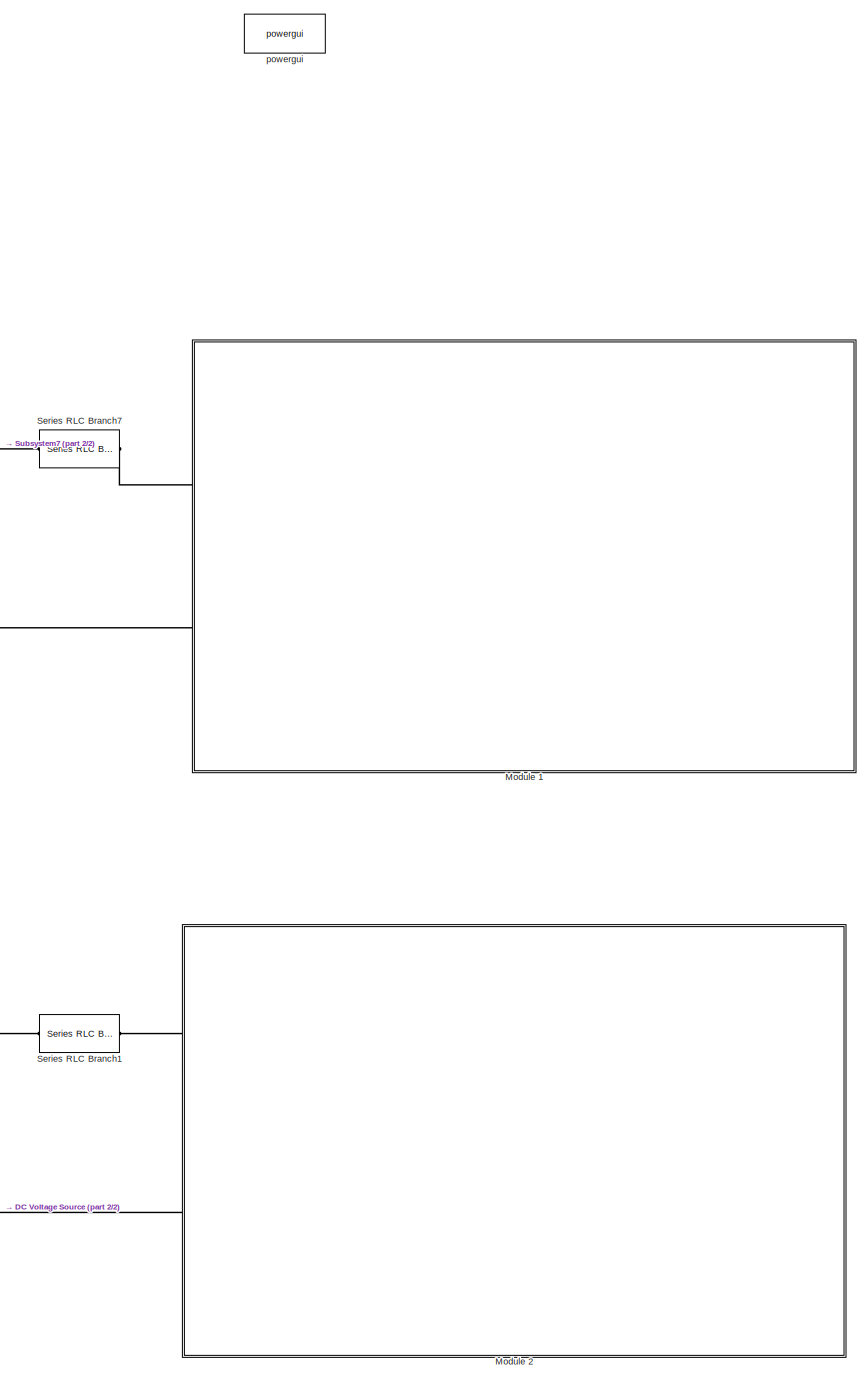
[diagram: root canvas - part 1/2, right side, full height]
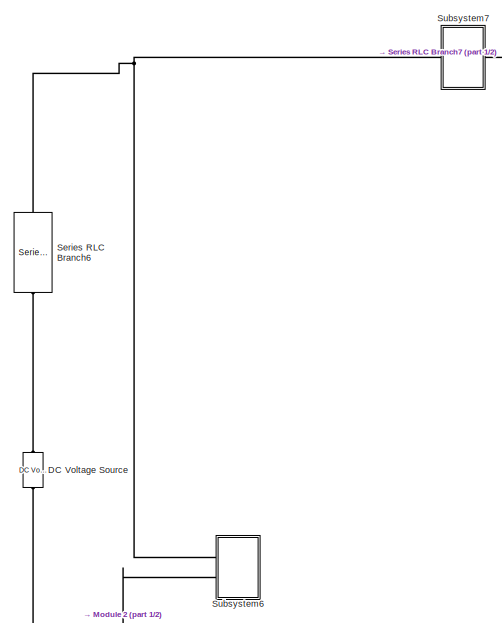
[diagram: root canvas - part 2/2, top left region]
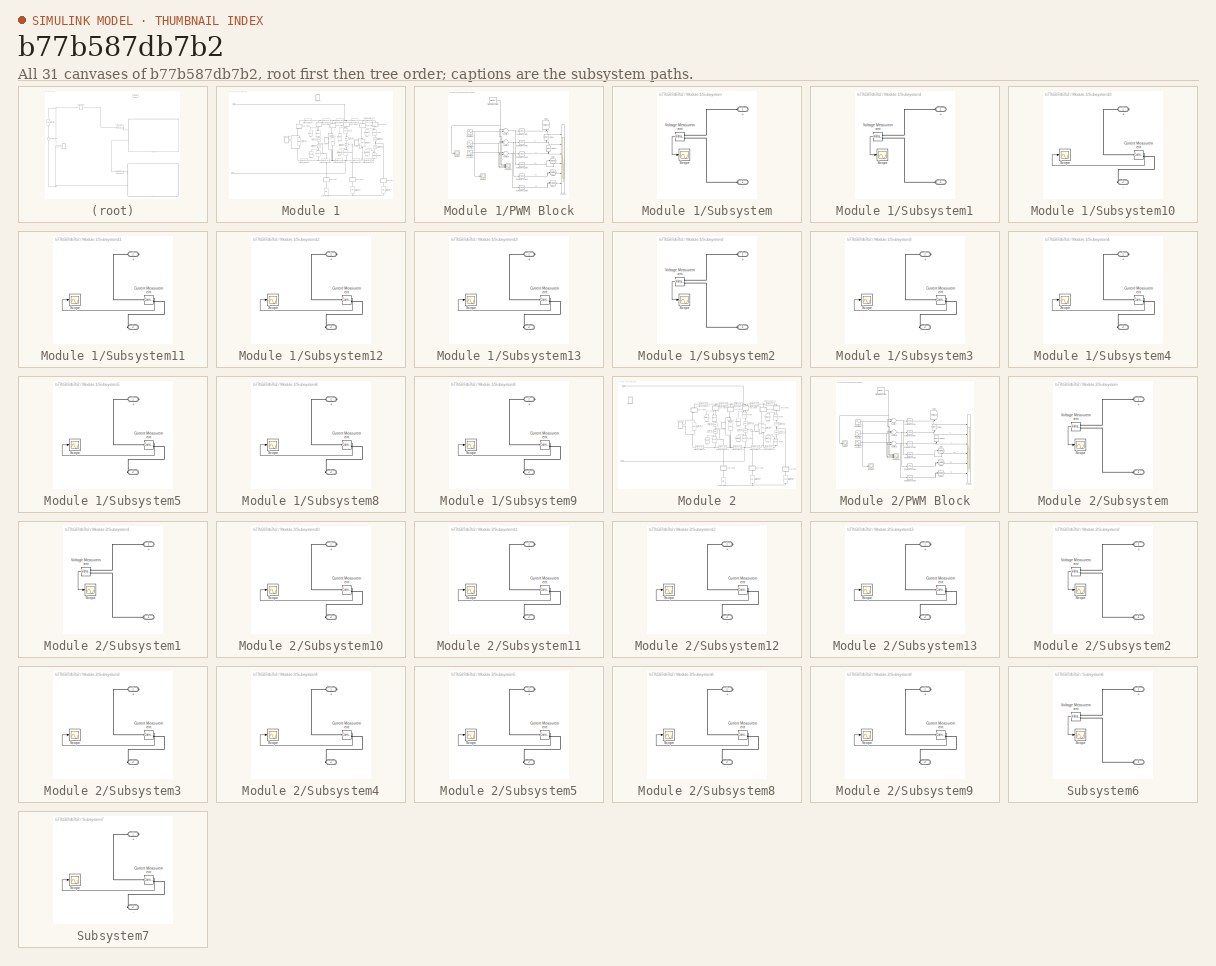
[diagram: thumbnail index - all 31 canvases of the model, root first then tree order]
MODEL slx_b77b587db7b2
KIND model
CONFIG AbsTol = auto
CONFIG EnableMultiTasking = off
CONFIG FixedStep = SampleTime
CONFIG MaxStep = auto
CONFIG MinStep = auto
CONFIG RelTol = 1e-3
CONFIG SampleTimeConstraint = Unconstrained
CONFIG Solver = FixedStepDiscrete
CONFIG SolverName = FixedStepDiscrete
CONFIG StartTime = 0.0
CONFIG StopTime = Tfinal
BLOCK [Reference] DC Voltage Source  REF=powerlib/Electrical
Sources/DC Voltage Source
  Ports = [0, 0, 0, 0, 0, 1, 1]
  SourceBlock = powerlib/Electrical\nSources/DC Voltage Source
  SourceProductBaseCode = PS
  SourceProductName = Simscape Power Systems
  SourceType = DC Voltage Source
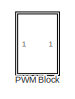
[diagram: Module 1 - part 1/4, top center region]
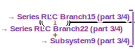
[diagram: Module 1 - part 2/4, top left region]
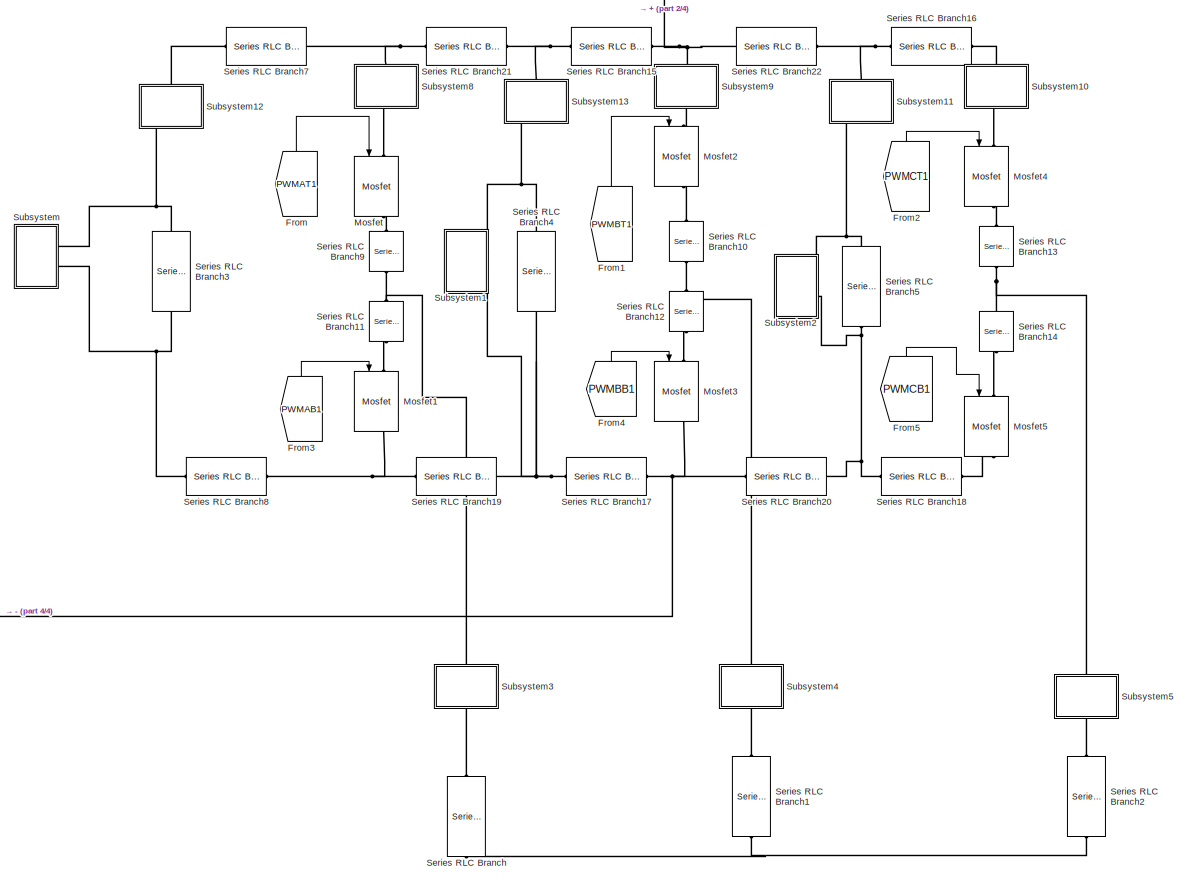
[diagram: Module 1 - part 3/4, center side, full height]
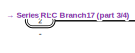
[diagram: Module 1 - part 4/4, bottom left region]
BLOCK [SubSystem] Module 1
  Ports = [0, 0, 0, 0, 0, 2]
  RequestExecContextInheritance = off
BLOCK [PMIOPort] Module 1/+
  Side = Left
BLOCK [PMIOPort] Module 1/-
  Port = 2
  Side = Left
BLOCK [From] Module 1/From
  GotoTag = PWMAT1
  TagVisibility = global
BLOCK [From] Module 1/From1
  GotoTag = PWMBT1
  TagVisibility = global
BLOCK [From] Module 1/From2
  GotoTag = PWMCT1
  TagVisibility = global
BLOCK [From] Module 1/From3
  GotoTag = PWMAB1
  TagVisibility = global
BLOCK [From] Module 1/From4
  GotoTag = PWMBB1
  TagVisibility = global
BLOCK [From] Module 1/From5
  GotoTag = PWMCB1
  TagVisibility = global
BLOCK [Reference] Module 1/Mosfet  REF=powerlib/Power
Electronics/Mosfet
  Ports = [1, 1, 0, 0, 0, 1, 1]
  SourceBlock = powerlib/Power\nElectronics/Mosfet
  SourceProductBaseCode = PS
  SourceProductName = Simscape Power Systems
  SourceType = Mosfet
BLOCK [Reference] Module 1/Mosfet1  REF=powerlib/Power
Electronics/Mosfet
  Ports = [1, 1, 0, 0, 0, 1, 1]
  SourceBlock = powerlib/Power\nElectronics/Mosfet
  SourceProductBaseCode = PS
  SourceProductName = Simscape Power Systems
  SourceType = Mosfet
BLOCK [Reference] Module 1/Mosfet2  REF=powerlib/Power
Electronics/Mosfet
  Ports = [1, 1, 0, 0, 0, 1, 1]
  SourceBlock = powerlib/Power\nElectronics/Mosfet
  SourceProductBaseCode = PS
  SourceProductName = Simscape Power Systems
  SourceType = Mosfet
BLOCK [Reference] Module 1/Mosfet3  REF=powerlib/Power
Electronics/Mosfet
  Ports = [1, 1, 0, 0, 0, 1, 1]
  SourceBlock = powerlib/Power\nElectronics/Mosfet
  SourceProductBaseCode = PS
  SourceProductName = Simscape Power Systems
  SourceType = Mosfet
BLOCK [Reference] Module 1/Mosfet4  REF=powerlib/Power
Electronics/Mosfet
  Ports = [1, 1, 0, 0, 0, 1, 1]
  SourceBlock = powerlib/Power\nElectronics/Mosfet
  SourceProductBaseCode = PS
  SourceProductName = Simscape Power Systems
  SourceType = Mosfet
BLOCK [Reference] Module 1/Mosfet5  REF=powerlib/Power
Electronics/Mosfet
  Ports = [1, 1, 0, 0, 0, 1, 1]
  SourceBlock = powerlib/Power\nElectronics/Mosfet
  SourceProductBaseCode = PS
  SourceProductName = Simscape Power Systems
  SourceType = Mosfet
BLOCK [SubSystem] Module 1/PWM Block
  Ports = []
  RequestExecContextInheritance = off
BLOCK [Reference] Module 1/PWM Block/Compare To Zero  REF=simulink/Logic and Bit
Operations/Compare
To Zero
  Ports = [1, 1]
  SourceBlock = simulink/Logic and Bit\nOperations/Compare\nTo Zero
  SourceProductBaseCode = SL
  SourceProductName = Simulink
  SourceType = Compare To Zero
BLOCK [Reference] Module 1/PWM Block/Compare To Zero1  REF=simulink/Logic and Bit
Operations/Compare
To Zero
  Ports = [1, 1]
  SourceBlock = simulink/Logic and Bit\nOperations/Compare\nTo Zero
  SourceProductBaseCode = SL
  SourceProductName = Simulink
  SourceType = Compare To Zero
BLOCK [Reference] Module 1/PWM Block/Compare To Zero2  REF=simulink/Logic and Bit
Operations/Compare
To Zero
  Ports = [1, 1]
  SourceBlock = simulink/Logic and Bit\nOperations/Compare\nTo Zero
  SourceProductBaseCode = SL
  SourceProductName = Simulink
  SourceType = Compare To Zero
BLOCK [Reference] Module 1/PWM Block/Compare To Zero3  REF=simulink/Logic and Bit
Operations/Compare
To Zero
  Ports = [1, 1]
  SourceBlock = simulink/Logic and Bit\nOperations/Compare\nTo Zero
  SourceProductBaseCode = SL
  SourceProductName = Simulink
  SourceType = Compare To Zero
BLOCK [Reference] Module 1/PWM Block/Compare To Zero4  REF=simulink/Logic and Bit
Operations/Compare
To Zero
  Ports = [1, 1]
  SourceBlock = simulink/Logic and Bit\nOperations/Compare\nTo Zero
  SourceProductBaseCode = SL
  SourceProductName = Simulink
  SourceType = Compare To Zero
BLOCK [Reference] Module 1/PWM Block/Compare To Zero5  REF=simulink/Logic and Bit
Operations/Compare
To Zero
  Ports = [1, 1]
  SourceBlock = simulink/Logic and Bit\nOperations/Compare\nTo Zero
  SourceProductBaseCode = SL
  SourceProductName = Simulink
  SourceType = Compare To Zero
BLOCK [Goto] Module 1/PWM Block/Goto10
  GotoTag = PWMCT1
  TagVisibility = global
BLOCK [Goto] Module 1/PWM Block/Goto11
  GotoTag = PWMCB1
  TagVisibility = global
BLOCK [Goto] Module 1/PWM Block/Goto6
  GotoTag = PWMAT1
  TagVisibility = global
BLOCK [Goto] Module 1/PWM Block/Goto7
  GotoTag = PWMAB1
  TagVisibility = global
BLOCK [Goto] Module 1/PWM Block/Goto8
  GotoTag = PWMBT1
  TagVisibility = global
BLOCK [Goto] Module 1/PWM Block/Goto9
  GotoTag = PWMBB1
  TagVisibility = global
BLOCK [Scope] Module 1/PWM Block/Scope
  Floating = off
  NumInputPorts = 1
  Ports = [1]
  ScopeSpecificationString = Simulink.scopes.TimeScopeBlockCfg('CurrentConfiguration', extmgr.ConfigurationSet(extmgr.Configuration('Core','General UI',true),extmgr.Configuration('Core','Source UI',true),extmgr.Configuration('Sources','WiredSimulink',true,'DataLoggingVariableName','ScopeData1'),extmgr.Configuration('Visuals','Time Domain',true,'SerializedDisplays',{struct('MinYLimReal','-1.01818','MaxYLimReal','1.25','YLabelR...<+1409ch>
BLOCK [Scope] Module 1/PWM Block/Scope1
  Floating = off
  NumInputPorts = 1
  Ports = [1]
  ScopeSpecificationString = Simulink.scopes.TimeScopeBlockCfg('CurrentConfiguration', extmgr.ConfigurationSet(extmgr.Configuration('Core','General UI',true),extmgr.Configuration('Core','Source UI',true),extmgr.Configuration('Sources','WiredSimulink',true,'DataLoggingVariableName','ScopeData2'),extmgr.Configuration('Visuals','Time Domain',true,'SerializedDisplays',{struct('MinYLimReal','-0.05124','MaxYLimReal','0.46116','YLab...<+1403ch>
BLOCK [Scope] Module 1/PWM Block/Scope12
  Floating = off
  NumInputPorts = 4
  Ports = [4]
  ScopeSpecificationString = Simulink.scopes.TimeScopeBlockCfg('CurrentConfiguration', extmgr.ConfigurationSet(extmgr.Configuration('Core','General UI',true),extmgr.Configuration('Core','Source UI',true),extmgr.Configuration('Sources','WiredSimulink',true,'DataLoggingVariableName','ScopeData3'),extmgr.Configuration('Visuals','Time Domain',true,'SerializedDisplays',{struct('MinYLimReal','-1.25','MaxYLimReal','1.25','YLabelReal...<+1451ch>
BLOCK [Scope] Module 1/PWM Block/Scope6
  Commented = on
  Floating = off
  NumInputPorts = 6
  Ports = [6]
  ScopeSpecificationString = Simulink.scopes.TimeScopeBlockCfg('CurrentConfiguration', extmgr.ConfigurationSet(extmgr.Configuration('Core','General UI',true),extmgr.Configuration('Core','Source UI',true),extmgr.Configuration('Sources','WiredSimulink',true,'DataLoggingVariableName','ScopeData9','DataLoggingLimitDataPoints',true),extmgr.Configuration('Visuals','Time Domain',true,'SerializedDisplays',{struct('MinYLimReal','-0.12...<+5192ch>
BLOCK [Sin] Module 1/PWM Block/Sine Wave Function
  Amplitude = ModulationIndex1
  Frequency = ffund*2*pi
  Phase = -2*pi/3
  Ports = [0, 1]
  SampleTime = 0
BLOCK [Sin] Module 1/PWM Block/Sine Wave Function1
  Amplitude = ModulationIndex1
  Frequency = ffund*2*pi
  Ports = [0, 1]
  SampleTime = 0
BLOCK [Sin] Module 1/PWM Block/Sine Wave Function2
  Amplitude = ModulationIndex1
  Frequency = ffund*2*pi
  Phase = 2*pi/3
  Ports = [0, 1]
  SampleTime = 0
BLOCK [Sum] Module 1/PWM Block/Subtract
  InputSameDT = off
  Inputs = +-
  OutDataTypeStr = Inherit: Inherit via internal rule
  Ports = [2, 1]
  SaturateOnIntegerOverflow = off
BLOCK [Sum] Module 1/PWM Block/Subtract1
  InputSameDT = off
  Inputs = +-
  OutDataTypeStr = Inherit: Inherit via internal rule
  Ports = [2, 1]
  SaturateOnIntegerOverflow = off
BLOCK [Sum] Module 1/PWM Block/Subtract2
  InputSameDT = off
  Inputs = +-
  OutDataTypeStr = Inherit: Inherit via internal rule
  Ports = [2, 1]
  SaturateOnIntegerOverflow = off
BLOCK [Reference] Module 1/PWM Block/Triangle Generator  REF=powerlib_meascontrol/Pulse & Signal
Generators/Triangle
Generator
  Ports = [0, 1]
  SourceBlock = powerlib_meascontrol/Pulse & Signal\nGenerators/Triangle\nGenerator
  SourceProductBaseCode = PS
  SourceProductName = Simscape Power Systems
  SourceType = Triangle Generator
BLOCK [Reference] Module 1/Series RLC Branch  REF=powerlib/Elements/Series RLC Branch
  Ports = [0, 0, 0, 0, 0, 1, 1]
  SourceBlock = powerlib/Elements/Series RLC Branch
  SourceProductBaseCode = PS
  SourceProductName = Simscape Power Systems
  SourceType = Series RLC Branch
BLOCK [Reference] Module 1/Series RLC Branch1  REF=powerlib/Elements/Series RLC Branch
  Ports = [0, 0, 0, 0, 0, 1, 1]
  SourceBlock = powerlib/Elements/Series RLC Branch
  SourceProductBaseCode = PS
  SourceProductName = Simscape Power Systems
  SourceType = Series RLC Branch
BLOCK [Reference] Module 1/Series RLC Branch10  REF=powerlib/Elements/Series RLC Branch
  Ports = [0, 0, 0, 0, 0, 1, 1]
  SourceBlock = powerlib/Elements/Series RLC Branch
  SourceProductBaseCode = PS
  SourceProductName = Simscape Power Systems
  SourceType = Series RLC Branch
BLOCK [Reference] Module 1/Series RLC Branch11  REF=powerlib/Elements/Series RLC Branch
  Ports = [0, 0, 0, 0, 0, 1, 1]
  SourceBlock = powerlib/Elements/Series RLC Branch
  SourceProductBaseCode = PS
  SourceProductName = Simscape Power Systems
  SourceType = Series RLC Branch
BLOCK [Reference] Module 1/Series RLC Branch12  REF=powerlib/Elements/Series RLC Branch
  Ports = [0, 0, 0, 0, 0, 1, 1]
  SourceBlock = powerlib/Elements/Series RLC Branch
  SourceProductBaseCode = PS
  SourceProductName = Simscape Power Systems
  SourceType = Series RLC Branch
BLOCK [Reference] Module 1/Series RLC Branch13  REF=powerlib/Elements/Series RLC Branch
  Ports = [0, 0, 0, 0, 0, 1, 1]
  SourceBlock = powerlib/Elements/Series RLC Branch
  SourceProductBaseCode = PS
  SourceProductName = Simscape Power Systems
  SourceType = Series RLC Branch
BLOCK [Reference] Module 1/Series RLC Branch14  REF=powerlib/Elements/Series RLC Branch
  Ports = [0, 0, 0, 0, 0, 1, 1]
  SourceBlock = powerlib/Elements/Series RLC Branch
  SourceProductBaseCode = PS
  SourceProductName = Simscape Power Systems
  SourceType = Series RLC Branch
BLOCK [Reference] Module 1/Series RLC Branch15  REF=powerlib/Elements/Series RLC Branch
  Ports = [0, 0, 0, 0, 0, 1, 1]
  SourceBlock = powerlib/Elements/Series RLC Branch
  SourceProductBaseCode = PS
  SourceProductName = Simscape Power Systems
  SourceType = Series RLC Branch
BLOCK [Reference] Module 1/Series RLC Branch16  REF=powerlib/Elements/Series RLC Branch
  Ports = [0, 0, 0, 0, 0, 1, 1]
  SourceBlock = powerlib/Elements/Series RLC Branch
  SourceProductBaseCode = PS
  SourceProductName = Simscape Power Systems
  SourceType = Series RLC Branch
BLOCK [Reference] Module 1/Series RLC Branch17  REF=powerlib/Elements/Series RLC Branch
  Ports = [0, 0, 0, 0, 0, 1, 1]
  SourceBlock = powerlib/Elements/Series RLC Branch
  SourceProductBaseCode = PS
  SourceProductName = Simscape Power Systems
  SourceType = Series RLC Branch
BLOCK [Reference] Module 1/Series RLC Branch18  REF=powerlib/Elements/Series RLC Branch
  Ports = [0, 0, 0, 0, 0, 1, 1]
  SourceBlock = powerlib/Elements/Series RLC Branch
  SourceProductBaseCode = PS
  SourceProductName = Simscape Power Systems
  SourceType = Series RLC Branch
BLOCK [Reference] Module 1/Series RLC Branch19  REF=powerlib/Elements/Series RLC Branch
  Ports = [0, 0, 0, 0, 0, 1, 1]
  SourceBlock = powerlib/Elements/Series RLC Branch
  SourceProductBaseCode = PS
  SourceProductName = Simscape Power Systems
  SourceType = Series RLC Branch
BLOCK [Reference] Module 1/Series RLC Branch2  REF=powerlib/Elements/Series RLC Branch
  Ports = [0, 0, 0, 0, 0, 1, 1]
  SourceBlock = powerlib/Elements/Series RLC Branch
  SourceProductBaseCode = PS
  SourceProductName = Simscape Power Systems
  SourceType = Series RLC Branch
BLOCK [Reference] Module 1/Series RLC Branch20  REF=powerlib/Elements/Series RLC Branch
  Ports = [0, 0, 0, 0, 0, 1, 1]
  SourceBlock = powerlib/Elements/Series RLC Branch
  SourceProductBaseCode = PS
  SourceProductName = Simscape Power Systems
  SourceType = Series RLC Branch
BLOCK [Reference] Module 1/Series RLC Branch21  REF=powerlib/Elements/Series RLC Branch
  Ports = [0, 0, 0, 0, 0, 1, 1]
  SourceBlock = powerlib/Elements/Series RLC Branch
  SourceProductBaseCode = PS
  SourceProductName = Simscape Power Systems
  SourceType = Series RLC Branch
BLOCK [Reference] Module 1/Series RLC Branch22  REF=powerlib/Elements/Series RLC Branch
  Ports = [0, 0, 0, 0, 0, 1, 1]
  SourceBlock = powerlib/Elements/Series RLC Branch
  SourceProductBaseCode = PS
  SourceProductName = Simscape Power Systems
  SourceType = Series RLC Branch
BLOCK [Reference] Module 1/Series RLC Branch3  REF=powerlib/Elements/Series RLC Branch
  Ports = [0, 0, 0, 0, 0, 1, 1]
  SourceBlock = powerlib/Elements/Series RLC Branch
  SourceProductBaseCode = PS
  SourceProductName = Simscape Power Systems
  SourceType = Series RLC Branch
BLOCK [Reference] Module 1/Series RLC Branch4  REF=powerlib/Elements/Series RLC Branch
  Ports = [0, 0, 0, 0, 0, 1, 1]
  SourceBlock = powerlib/Elements/Series RLC Branch
  SourceProductBaseCode = PS
  SourceProductName = Simscape Power Systems
  SourceType = Series RLC Branch
BLOCK [Reference] Module 1/Series RLC Branch5  REF=powerlib/Elements/Series RLC Branch
  Ports = [0, 0, 0, 0, 0, 1, 1]
  SourceBlock = powerlib/Elements/Series RLC Branch
  SourceProductBaseCode = PS
  SourceProductName = Simscape Power Systems
  SourceType = Series RLC Branch
BLOCK [Reference] Module 1/Series RLC Branch7  REF=powerlib/Elements/Series RLC Branch
  Ports = [0, 0, 0, 0, 0, 1, 1]
  SourceBlock = powerlib/Elements/Series RLC Branch
  SourceProductBaseCode = PS
  SourceProductName = Simscape Power Systems
  SourceType = Series RLC Branch
BLOCK [Reference] Module 1/Series RLC Branch8  REF=powerlib/Elements/Series RLC Branch
  Ports = [0, 0, 0, 0, 0, 1, 1]
  SourceBlock = powerlib/Elements/Series RLC Branch
  SourceProductBaseCode = PS
  SourceProductName = Simscape Power Systems
  SourceType = Series RLC Branch
BLOCK [Reference] Module 1/Series RLC Branch9  REF=powerlib/Elements/Series RLC Branch
  Ports = [0, 0, 0, 0, 0, 1, 1]
  SourceBlock = powerlib/Elements/Series RLC Branch
  SourceProductBaseCode = PS
  SourceProductName = Simscape Power Systems
  SourceType = Series RLC Branch
BLOCK [SubSystem] Module 1/Subsystem
  Ports = [0, 0, 0, 0, 0, 2]
  RequestExecContextInheritance = off
BLOCK [PMIOPort] Module 1/Subsystem/+
  Side = Left
BLOCK [PMIOPort] Module 1/Subsystem/-
  Port = 2
  Side = Left
BLOCK [Scope] Module 1/Subsystem/Scope
  Floating = off
  NumInputPorts = 1
  Ports = [1]
  ScopeSpecificationString = Simulink.scopes.TimeScopeBlockCfg('CurrentConfiguration', extmgr.ConfigurationSet(extmgr.Configuration('Core','General UI',true),extmgr.Configuration('Core','Source UI',true),extmgr.Configuration('Sources','WiredSimulink',true,'DataLoggingVariableName','voltageA1','DataLoggingSaveFormat','Array'),extmgr.Configuration('Visuals','Time Domain',true,'SerializedDisplays',{struct('MinYLimReal','251.3191...<+1423ch>
BLOCK [Reference] Module 1/Subsystem/Voltage Measurement  REF=powerlib/Measurements/Voltage Measurement
  Ports = [0, 1, 0, 0, 0, 2]
  SourceBlock = powerlib/Measurements/Voltage Measurement
  SourceProductBaseCode = PS
  SourceProductName = Simscape Power Systems
  SourceType = Voltage Measurement
  UserDataPersistent = on
BLOCK [SubSystem] Module 1/Subsystem1
  Ports = [0, 0, 0, 0, 0, 2]
  RequestExecContextInheritance = off
BLOCK [PMIOPort] Module 1/Subsystem1/+
  Side = Left
BLOCK [PMIOPort] Module 1/Subsystem1/-
  Port = 2
  Side = Left
BLOCK [Scope] Module 1/Subsystem1/Scope
  Floating = off
  NumInputPorts = 1
  Ports = [1]
  ScopeSpecificationString = Simulink.scopes.TimeScopeBlockCfg('CurrentConfiguration', extmgr.ConfigurationSet(extmgr.Configuration('Core','General UI',true),extmgr.Configuration('Core','Source UI',true),extmgr.Configuration('Sources','WiredSimulink',true,'DataLoggingVariableName','voltageB1','DataLoggingSaveFormat','Array'),extmgr.Configuration('Visuals','Time Domain',true,'SerializedDisplays',{struct('MinYLimReal','253.6786...<+1423ch>
BLOCK [Reference] Module 1/Subsystem1/Voltage Measurement  REF=powerlib/Measurements/Voltage Measurement
  Ports = [0, 1, 0, 0, 0, 2]
  SourceBlock = powerlib/Measurements/Voltage Measurement
  SourceProductBaseCode = PS
  SourceProductName = Simscape Power Systems
  SourceType = Voltage Measurement
  UserDataPersistent = on
BLOCK [SubSystem] Module 1/Subsystem10
  Ports = [0, 0, 0, 0, 0, 1, 1]
  RequestExecContextInheritance = off
BLOCK [PMIOPort] Module 1/Subsystem10/+
  Side = Right
BLOCK [PMIOPort] Module 1/Subsystem10/-
  Port = 2
  Side = Left
BLOCK [Reference] Module 1/Subsystem10/Current Measurement  REF=powerlib/Measurements/Current Measurement
  Ports = [0, 1, 0, 0, 0, 1, 1]
  SourceBlock = powerlib/Measurements/Current Measurement
  SourceProductBaseCode = PS
  SourceProductName = Simscape Power Systems
  SourceType = Current Measurement
  UserDataPersistent = on
BLOCK [Scope] Module 1/Subsystem10/Scope
  Floating = off
  NumInputPorts = 1
  Ports = [1]
  ScopeSpecificationString = Simulink.scopes.TimeScopeBlockCfg('CurrentConfiguration', extmgr.ConfigurationSet(extmgr.Configuration('Core','General UI',true),extmgr.Configuration('Core','Source UI',true),extmgr.Configuration('Sources','WiredSimulink',true,'DataLoggingVariableName','SCIC1','DataLoggingSaveFormat','Array'),extmgr.Configuration('Visuals','Time Domain',true,'SerializedDisplays',{struct('MinYLimReal','-20.75589','...<+1444ch>
BLOCK [SubSystem] Module 1/Subsystem11
  Ports = [0, 0, 0, 0, 0, 1, 1]
  RequestExecContextInheritance = off
BLOCK [PMIOPort] Module 1/Subsystem11/+
  Side = Right
BLOCK [PMIOPort] Module 1/Subsystem11/-
  Port = 2
  Side = Left
BLOCK [Reference] Module 1/Subsystem11/Current Measurement  REF=powerlib/Measurements/Current Measurement
  Ports = [0, 1, 0, 0, 0, 1, 1]
  SourceBlock = powerlib/Measurements/Current Measurement
  SourceProductBaseCode = PS
  SourceProductName = Simscape Power Systems
  SourceType = Current Measurement
  UserDataPersistent = on
BLOCK [Scope] Module 1/Subsystem11/Scope
  Floating = off
  NumInputPorts = 1
  Ports = [1]
  ScopeSpecificationString = Simulink.scopes.TimeScopeBlockCfg('CurrentConfiguration', extmgr.ConfigurationSet(extmgr.Configuration('Core','General UI',true),extmgr.Configuration('Core','Source UI',true),extmgr.Configuration('Sources','WiredSimulink',true,'DataLoggingVariableName','currentC1','DataLoggingSaveFormat','Array'),extmgr.Configuration('Visuals','Time Domain',true,'SerializedDisplays',{struct('MinYLimReal','-16.2038...<+1447ch>
BLOCK [SubSystem] Module 1/Subsystem12
  Ports = [0, 0, 0, 0, 0, 1, 1]
  RequestExecContextInheritance = off
BLOCK [PMIOPort] Module 1/Subsystem12/+
  Side = Right
BLOCK [PMIOPort] Module 1/Subsystem12/-
  Port = 2
  Side = Left
BLOCK [Reference] Module 1/Subsystem12/Current Measurement  REF=powerlib/Measurements/Current Measurement
  Ports = [0, 1, 0, 0, 0, 1, 1]
  SourceBlock = powerlib/Measurements/Current Measurement
  SourceProductBaseCode = PS
  SourceProductName = Simscape Power Systems
  SourceType = Current Measurement
  UserDataPersistent = on
BLOCK [Scope] Module 1/Subsystem12/Scope
  Floating = off
  NumInputPorts = 1
  Ports = [1]
  ScopeSpecificationString = Simulink.scopes.TimeScopeBlockCfg('CurrentConfiguration', extmgr.ConfigurationSet(extmgr.Configuration('Core','General UI',true),extmgr.Configuration('Core','Source UI',true),extmgr.Configuration('Sources','WiredSimulink',true,'DataLoggingVariableName','currentA1','DataLoggingSaveFormat','Array'),extmgr.Configuration('Visuals','Time Domain',true,'SerializedDisplays',{struct('MinYLimReal','-11.9334...<+1447ch>
BLOCK [SubSystem] Module 1/Subsystem13
  Ports = [0, 0, 0, 0, 0, 1, 1]
  RequestExecContextInheritance = off
BLOCK [PMIOPort] Module 1/Subsystem13/+
  Side = Right
BLOCK [PMIOPort] Module 1/Subsystem13/-
  Port = 2
  Side = Left
BLOCK [Reference] Module 1/Subsystem13/Current Measurement  REF=powerlib/Measurements/Current Measurement
  Ports = [0, 1, 0, 0, 0, 1, 1]
  SourceBlock = powerlib/Measurements/Current Measurement
  SourceProductBaseCode = PS
  SourceProductName = Simscape Power Systems
  SourceType = Current Measurement
  UserDataPersistent = on
BLOCK [Scope] Module 1/Subsystem13/Scope
  Floating = off
  NumInputPorts = 1
  Ports = [1]
  ScopeSpecificationString = Simulink.scopes.TimeScopeBlockCfg('CurrentConfiguration', extmgr.ConfigurationSet(extmgr.Configuration('Core','General UI',true),extmgr.Configuration('Core','Source UI',true),extmgr.Configuration('Sources','WiredSimulink',true,'DataLoggingVariableName','currentB1','DataLoggingSaveFormat','Array'),extmgr.Configuration('Visuals','Time Domain',true,'SerializedDisplays',{struct('MinYLimReal','-7.08731...<+1441ch>
BLOCK [SubSystem] Module 1/Subsystem2
  Ports = [0, 0, 0, 0, 0, 2]
  RequestExecContextInheritance = off
BLOCK [PMIOPort] Module 1/Subsystem2/+
  Side = Left
BLOCK [PMIOPort] Module 1/Subsystem2/-
  Port = 2
  Side = Left
BLOCK [Scope] Module 1/Subsystem2/Scope
  Floating = off
  NumInputPorts = 1
  Ports = [1]
  ScopeSpecificationString = Simulink.scopes.TimeScopeBlockCfg('CurrentConfiguration', extmgr.ConfigurationSet(extmgr.Configuration('Core','General UI',true),extmgr.Configuration('Core','Source UI',true),extmgr.Configuration('Sources','WiredSimulink',true,'DataLoggingVariableName','voltageC1','DataLoggingSaveFormat','Array'),extmgr.Configuration('Visuals','Time Domain',true,'SerializedDisplays',{struct('MinYLimReal','240.2643...<+1423ch>
BLOCK [Reference] Module 1/Subsystem2/Voltage Measurement  REF=powerlib/Measurements/Voltage Measurement
  Ports = [0, 1, 0, 0, 0, 2]
  SourceBlock = powerlib/Measurements/Voltage Measurement
  SourceProductBaseCode = PS
  SourceProductName = Simscape Power Systems
  SourceType = Voltage Measurement
  UserDataPersistent = on
BLOCK [SubSystem] Module 1/Subsystem3
  Ports = [0, 0, 0, 0, 0, 1, 1]
  RequestExecContextInheritance = off
BLOCK [PMIOPort] Module 1/Subsystem3/+
  Side = Right
BLOCK [PMIOPort] Module 1/Subsystem3/-
  Port = 2
  Side = Left
BLOCK [Reference] Module 1/Subsystem3/Current Measurement  REF=powerlib/Measurements/Current Measurement
  Ports = [0, 1, 0, 0, 0, 1, 1]
  SourceBlock = powerlib/Measurements/Current Measurement
  SourceProductBaseCode = PS
  SourceProductName = Simscape Power Systems
  SourceType = Current Measurement
  UserDataPersistent = on
BLOCK [Scope] Module 1/Subsystem3/Scope
  Floating = off
  NumInputPorts = 1
  Ports = [1]
  ScopeSpecificationString = Simulink.scopes.TimeScopeBlockCfg('CurrentConfiguration', extmgr.ConfigurationSet(extmgr.Configuration('Core','General UI',true),extmgr.Configuration('Core','Source UI',true),extmgr.Configuration('Sources','WiredSimulink',true,'DataLoggingVariableName','loadA1','DataLoggingSaveFormat','Array'),extmgr.Configuration('Visuals','Time Domain',true,'SerializedDisplays',{struct('MinYLimReal','-13.90645',...<+1445ch>
BLOCK [SubSystem] Module 1/Subsystem4
  Ports = [0, 0, 0, 0, 0, 1, 1]
  RequestExecContextInheritance = off
BLOCK [PMIOPort] Module 1/Subsystem4/+
  Side = Right
BLOCK [PMIOPort] Module 1/Subsystem4/-
  Port = 2
  Side = Left
BLOCK [Reference] Module 1/Subsystem4/Current Measurement  REF=powerlib/Measurements/Current Measurement
  Ports = [0, 1, 0, 0, 0, 1, 1]
  SourceBlock = powerlib/Measurements/Current Measurement
  SourceProductBaseCode = PS
  SourceProductName = Simscape Power Systems
  SourceType = Current Measurement
  UserDataPersistent = on
BLOCK [Scope] Module 1/Subsystem4/Scope
  Floating = off
  NumInputPorts = 1
  Ports = [1]
  ScopeSpecificationString = Simulink.scopes.TimeScopeBlockCfg('CurrentConfiguration', extmgr.ConfigurationSet(extmgr.Configuration('Core','General UI',true),extmgr.Configuration('Core','Source UI',true),extmgr.Configuration('Sources','WiredSimulink',true,'DataLoggingVariableName','loadB1','DataLoggingSaveFormat','Array'),extmgr.Configuration('Visuals','Time Domain',true,'SerializedDisplays',{struct('MinYLimReal','-20.79689',...<+1442ch>
BLOCK [SubSystem] Module 1/Subsystem5
  Ports = [0, 0, 0, 0, 0, 1, 1]
  RequestExecContextInheritance = off
BLOCK [PMIOPort] Module 1/Subsystem5/+
  Side = Right
BLOCK [PMIOPort] Module 1/Subsystem5/-
  Port = 2
  Side = Left
BLOCK [Reference] Module 1/Subsystem5/Current Measurement  REF=powerlib/Measurements/Current Measurement
  Ports = [0, 1, 0, 0, 0, 1, 1]
  SourceBlock = powerlib/Measurements/Current Measurement
  SourceProductBaseCode = PS
  SourceProductName = Simscape Power Systems
  SourceType = Current Measurement
  UserDataPersistent = on
BLOCK [Scope] Module 1/Subsystem5/Scope
  Floating = off
  NumInputPorts = 1
  Ports = [1]
  ScopeSpecificationString = Simulink.scopes.TimeScopeBlockCfg('CurrentConfiguration', extmgr.ConfigurationSet(extmgr.Configuration('Core','General UI',true),extmgr.Configuration('Core','Source UI',true),extmgr.Configuration('Sources','WiredSimulink',true,'DataLoggingVariableName','loadC1','DataLoggingSaveFormat','Array'),extmgr.Configuration('Visuals','Time Domain',true,'SerializedDisplays',{struct('MinYLimReal','-20.7929','...<+1440ch>
BLOCK [SubSystem] Module 1/Subsystem8
  Ports = [0, 0, 0, 0, 0, 1, 1]
  RequestExecContextInheritance = off
BLOCK [PMIOPort] Module 1/Subsystem8/+
  Side = Right
BLOCK [PMIOPort] Module 1/Subsystem8/-
  Port = 2
  Side = Left
BLOCK [Reference] Module 1/Subsystem8/Current Measurement  REF=powerlib/Measurements/Current Measurement
  Ports = [0, 1, 0, 0, 0, 1, 1]
  SourceBlock = powerlib/Measurements/Current Measurement
  SourceProductBaseCode = PS
  SourceProductName = Simscape Power Systems
  SourceType = Current Measurement
  UserDataPersistent = on
BLOCK [Scope] Module 1/Subsystem8/Scope
  Floating = off
  NumInputPorts = 1
  Ports = [1]
  ScopeSpecificationString = Simulink.scopes.TimeScopeBlockCfg('CurrentConfiguration', extmgr.ConfigurationSet(extmgr.Configuration('Core','General UI',true),extmgr.Configuration('Core','Source UI',true),extmgr.Configuration('Sources','WiredSimulink',true,'DataLoggingVariableName','SAIA1','DataLoggingSaveFormat','Array'),extmgr.Configuration('Visuals','Time Domain',true,'SerializedDisplays',{struct('MinYLimReal','-13.94578','...<+1487ch>
BLOCK [SubSystem] Module 1/Subsystem9
  Ports = [0, 0, 0, 0, 0, 1, 1]
  RequestExecContextInheritance = off
BLOCK [PMIOPort] Module 1/Subsystem9/+
  Side = Right
BLOCK [PMIOPort] Module 1/Subsystem9/-
  Port = 2
  Side = Left
BLOCK [Reference] Module 1/Subsystem9/Current Measurement  REF=powerlib/Measurements/Current Measurement
  Ports = [0, 1, 0, 0, 0, 1, 1]
  SourceBlock = powerlib/Measurements/Current Measurement
  SourceProductBaseCode = PS
  SourceProductName = Simscape Power Systems
  SourceType = Current Measurement
  UserDataPersistent = on
BLOCK [Scope] Module 1/Subsystem9/Scope
  Floating = off
  NumInputPorts = 1
  Ports = [1]
  ScopeSpecificationString = Simulink.scopes.TimeScopeBlockCfg('CurrentConfiguration', extmgr.ConfigurationSet(extmgr.Configuration('Core','General UI',true),extmgr.Configuration('Core','Source UI',true),extmgr.Configuration('Sources','WiredSimulink',true,'DataLoggingVariableName','SBIB1','DataLoggingSaveFormat','Array'),extmgr.Configuration('Visuals','Time Domain',true,'SerializedDisplays',{struct('MinYLimReal','-20.7597','M...<+1441ch>
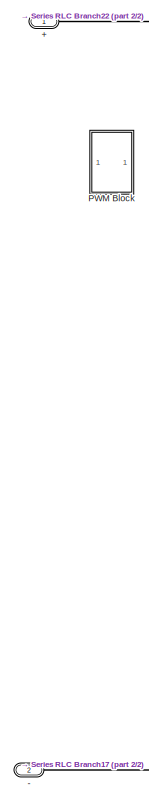
[diagram: Module 2 - part 1/2, left side, full height]
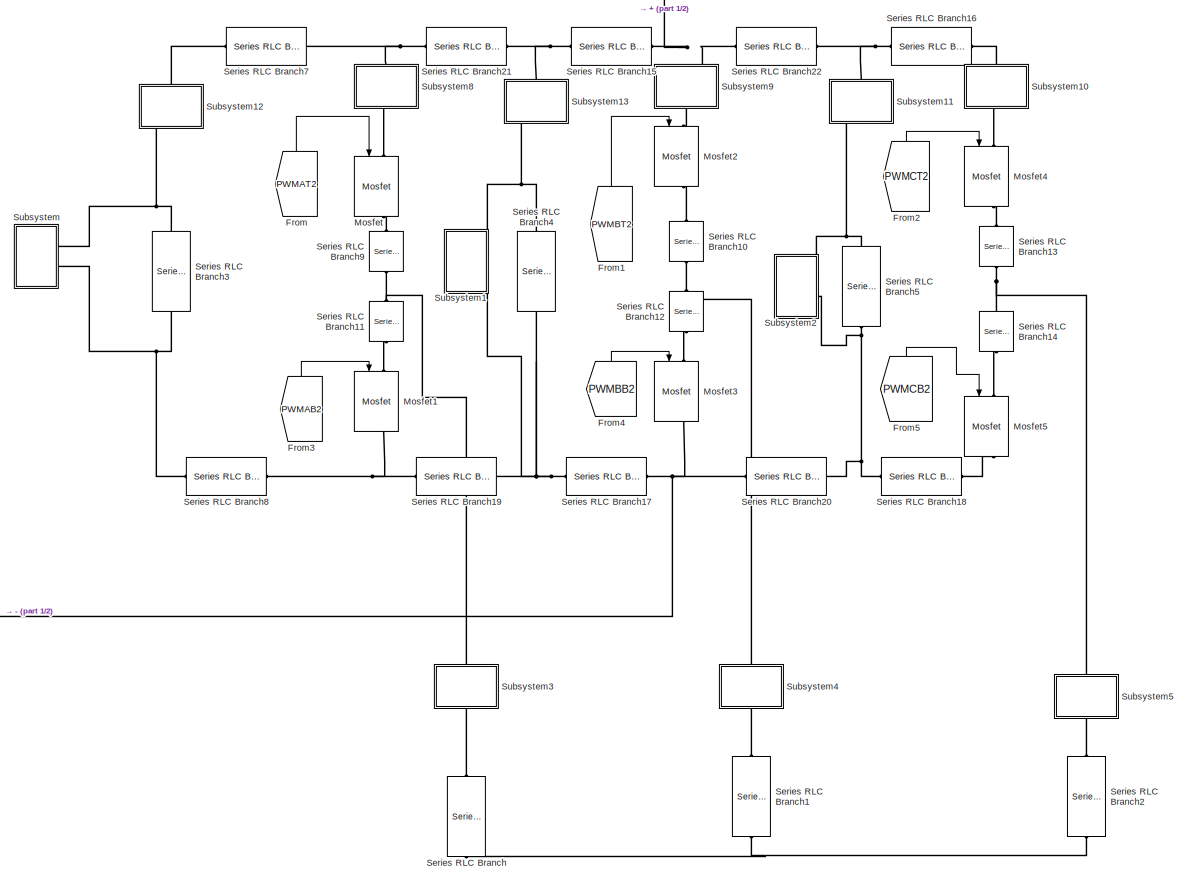
[diagram: Module 2 - part 2/2, center side, full height]
BLOCK [SubSystem] Module 2
  Ports = [0, 0, 0, 0, 0, 2]
  RequestExecContextInheritance = off
BLOCK [PMIOPort] Module 2/+
  Side = Left
BLOCK [PMIOPort] Module 2/-
  Port = 2
  Side = Left
BLOCK [From] Module 2/From
  GotoTag = PWMAT2
  TagVisibility = global
BLOCK [From] Module 2/From1
  GotoTag = PWMBT2
  TagVisibility = global
BLOCK [From] Module 2/From2
  GotoTag = PWMCT2
  TagVisibility = global
BLOCK [From] Module 2/From3
  GotoTag = PWMAB2
  TagVisibility = global
BLOCK [From] Module 2/From4
  GotoTag = PWMBB2
  TagVisibility = global
BLOCK [From] Module 2/From5
  GotoTag = PWMCB2
  TagVisibility = global
BLOCK [Reference] Module 2/Mosfet  REF=powerlib/Power
Electronics/Mosfet
  Ports = [1, 1, 0, 0, 0, 1, 1]
  SourceBlock = powerlib/Power\nElectronics/Mosfet
  SourceProductBaseCode = PS
  SourceProductName = Simscape Power Systems
  SourceType = Mosfet
BLOCK [Reference] Module 2/Mosfet1  REF=powerlib/Power
Electronics/Mosfet
  Ports = [1, 1, 0, 0, 0, 1, 1]
  SourceBlock = powerlib/Power\nElectronics/Mosfet
  SourceProductBaseCode = PS
  SourceProductName = Simscape Power Systems
  SourceType = Mosfet
BLOCK [Reference] Module 2/Mosfet2  REF=powerlib/Power
Electronics/Mosfet
  Ports = [1, 1, 0, 0, 0, 1, 1]
  SourceBlock = powerlib/Power\nElectronics/Mosfet
  SourceProductBaseCode = PS
  SourceProductName = Simscape Power Systems
  SourceType = Mosfet
BLOCK [Reference] Module 2/Mosfet3  REF=powerlib/Power
Electronics/Mosfet
  Ports = [1, 1, 0, 0, 0, 1, 1]
  SourceBlock = powerlib/Power\nElectronics/Mosfet
  SourceProductBaseCode = PS
  SourceProductName = Simscape Power Systems
  SourceType = Mosfet
BLOCK [Reference] Module 2/Mosfet4  REF=powerlib/Power
Electronics/Mosfet
  Ports = [1, 1, 0, 0, 0, 1, 1]
  SourceBlock = powerlib/Power\nElectronics/Mosfet
  SourceProductBaseCode = PS
  SourceProductName = Simscape Power Systems
  SourceType = Mosfet
BLOCK [Reference] Module 2/Mosfet5  REF=powerlib/Power
Electronics/Mosfet
  Ports = [1, 1, 0, 0, 0, 1, 1]
  SourceBlock = powerlib/Power\nElectronics/Mosfet
  SourceProductBaseCode = PS
  SourceProductName = Simscape Power Systems
  SourceType = Mosfet
BLOCK [SubSystem] Module 2/PWM Block
  Ports = []
  RequestExecContextInheritance = off
BLOCK [Reference] Module 2/PWM Block/Compare To Zero  REF=simulink/Logic and Bit
Operations/Compare
To Zero
  Ports = [1, 1]
  SourceBlock = simulink/Logic and Bit\nOperations/Compare\nTo Zero
  SourceProductBaseCode = SL
  SourceProductName = Simulink
  SourceType = Compare To Zero
BLOCK [Reference] Module 2/PWM Block/Compare To Zero1  REF=simulink/Logic and Bit
Operations/Compare
To Zero
  Ports = [1, 1]
  SourceBlock = simulink/Logic and Bit\nOperations/Compare\nTo Zero
  SourceProductBaseCode = SL
  SourceProductName = Simulink
  SourceType = Compare To Zero
BLOCK [Reference] Module 2/PWM Block/Compare To Zero2  REF=simulink/Logic and Bit
Operations/Compare
To Zero
  Ports = [1, 1]
  SourceBlock = simulink/Logic and Bit\nOperations/Compare\nTo Zero
  SourceProductBaseCode = SL
  SourceProductName = Simulink
  SourceType = Compare To Zero
BLOCK [Reference] Module 2/PWM Block/Compare To Zero3  REF=simulink/Logic and Bit
Operations/Compare
To Zero
  Ports = [1, 1]
  SourceBlock = simulink/Logic and Bit\nOperations/Compare\nTo Zero
  SourceProductBaseCode = SL
  SourceProductName = Simulink
  SourceType = Compare To Zero
BLOCK [Reference] Module 2/PWM Block/Compare To Zero4  REF=simulink/Logic and Bit
Operations/Compare
To Zero
  Ports = [1, 1]
  SourceBlock = simulink/Logic and Bit\nOperations/Compare\nTo Zero
  SourceProductBaseCode = SL
  SourceProductName = Simulink
  SourceType = Compare To Zero
BLOCK [Reference] Module 2/PWM Block/Compare To Zero5  REF=simulink/Logic and Bit
Operations/Compare
To Zero
  Ports = [1, 1]
  SourceBlock = simulink/Logic and Bit\nOperations/Compare\nTo Zero
  SourceProductBaseCode = SL
  SourceProductName = Simulink
  SourceType = Compare To Zero
BLOCK [Goto] Module 2/PWM Block/Goto10
  GotoTag = PWMCT2
  TagVisibility = global
BLOCK [Goto] Module 2/PWM Block/Goto11
  GotoTag = PWMCB2
  TagVisibility = global
BLOCK [Goto] Module 2/PWM Block/Goto6
  GotoTag = PWMAT2
  TagVisibility = global
BLOCK [Goto] Module 2/PWM Block/Goto7
  GotoTag = PWMAB2
  TagVisibility = global
BLOCK [Goto] Module 2/PWM Block/Goto8
  GotoTag = PWMBT2
  TagVisibility = global
BLOCK [Goto] Module 2/PWM Block/Goto9
  GotoTag = PWMBB2
  TagVisibility = global
BLOCK [Scope] Module 2/PWM Block/Scope
  Floating = off
  NumInputPorts = 1
  Ports = [1]
  ScopeSpecificationString = Simulink.scopes.TimeScopeBlockCfg('CurrentConfiguration', extmgr.ConfigurationSet(extmgr.Configuration('Core','General UI',true),extmgr.Configuration('Core','Source UI',true),extmgr.Configuration('Sources','WiredSimulink',true,'DataLoggingVariableName','ScopeData1'),extmgr.Configuration('Visuals','Time Domain',true,'SerializedDisplays',{struct('MinYLimReal','-1.01818','MaxYLimReal','1.25','YLabelR...<+1409ch>
BLOCK [Scope] Module 2/PWM Block/Scope1
  Floating = off
  NumInputPorts = 1
  Ports = [1]
  ScopeSpecificationString = Simulink.scopes.TimeScopeBlockCfg('CurrentConfiguration', extmgr.ConfigurationSet(extmgr.Configuration('Core','General UI',true),extmgr.Configuration('Core','Source UI',true),extmgr.Configuration('Sources','WiredSimulink',true,'DataLoggingVariableName','ScopeData2'),extmgr.Configuration('Visuals','Time Domain',true,'SerializedDisplays',{struct('MinYLimReal','-0.05124','MaxYLimReal','0.46116','YLab...<+1403ch>
BLOCK [Scope] Module 2/PWM Block/Scope12
  Floating = off
  NumInputPorts = 4
  Ports = [4]
  ScopeSpecificationString = Simulink.scopes.TimeScopeBlockCfg('CurrentConfiguration', extmgr.ConfigurationSet(extmgr.Configuration('Core','General UI',true),extmgr.Configuration('Core','Source UI',true),extmgr.Configuration('Sources','WiredSimulink',true,'DataLoggingVariableName','ScopeData3'),extmgr.Configuration('Visuals','Time Domain',true,'SerializedDisplays',{struct('MinYLimReal','-1.25','MaxYLimReal','1.25','YLabelReal...<+1451ch>
BLOCK [Scope] Module 2/PWM Block/Scope6
  Commented = on
  Floating = off
  NumInputPorts = 6
  Ports = [6]
  ScopeSpecificationString = Simulink.scopes.TimeScopeBlockCfg('CurrentConfiguration', extmgr.ConfigurationSet(extmgr.Configuration('Core','General UI',true),extmgr.Configuration('Core','Source UI',true),extmgr.Configuration('Sources','WiredSimulink',true,'DataLoggingVariableName','ScopeData9','DataLoggingLimitDataPoints',true),extmgr.Configuration('Visuals','Time Domain',true,'SerializedDisplays',{struct('MinYLimReal','-0.12...<+5192ch>
BLOCK [Sin] Module 2/PWM Block/Sine Wave Function
  Amplitude = ModulationIndex2
  Frequency = ffund*2*pi
  Phase = -2*pi/3
  Ports = [0, 1]
  SampleTime = 0
BLOCK [Sin] Module 2/PWM Block/Sine Wave Function1
  Amplitude = ModulationIndex2
  Frequency = ffund*2*pi
  Ports = [0, 1]
  SampleTime = 0
BLOCK [Sin] Module 2/PWM Block/Sine Wave Function2
  Amplitude = ModulationIndex2
  Frequency = ffund*2*pi
  Phase = 2*pi/3
  Ports = [0, 1]
  SampleTime = 0
BLOCK [Sum] Module 2/PWM Block/Subtract
  InputSameDT = off
  Inputs = +-
  OutDataTypeStr = Inherit: Inherit via internal rule
  Ports = [2, 1]
  SaturateOnIntegerOverflow = off
BLOCK [Sum] Module 2/PWM Block/Subtract1
  InputSameDT = off
  Inputs = +-
  OutDataTypeStr = Inherit: Inherit via internal rule
  Ports = [2, 1]
  SaturateOnIntegerOverflow = off
BLOCK [Sum] Module 2/PWM Block/Subtract2
  InputSameDT = off
  Inputs = +-
  OutDataTypeStr = Inherit: Inherit via internal rule
  Ports = [2, 1]
  SaturateOnIntegerOverflow = off
BLOCK [Reference] Module 2/PWM Block/Triangle Generator  REF=powerlib_meascontrol/Pulse & Signal
Generators/Triangle
Generator
  Ports = [0, 1]
  SourceBlock = powerlib_meascontrol/Pulse & Signal\nGenerators/Triangle\nGenerator
  SourceProductBaseCode = PS
  SourceProductName = Simscape Power Systems
  SourceType = Triangle Generator
BLOCK [Reference] Module 2/Series RLC Branch  REF=powerlib/Elements/Series RLC Branch
  Ports = [0, 0, 0, 0, 0, 1, 1]
  SourceBlock = powerlib/Elements/Series RLC Branch
  SourceProductBaseCode = PS
  SourceProductName = Simscape Power Systems
  SourceType = Series RLC Branch
BLOCK [Reference] Module 2/Series RLC Branch1  REF=powerlib/Elements/Series RLC Branch
  Ports = [0, 0, 0, 0, 0, 1, 1]
  SourceBlock = powerlib/Elements/Series RLC Branch
  SourceProductBaseCode = PS
  SourceProductName = Simscape Power Systems
  SourceType = Series RLC Branch
BLOCK [Reference] Module 2/Series RLC Branch10  REF=powerlib/Elements/Series RLC Branch
  Ports = [0, 0, 0, 0, 0, 1, 1]
  SourceBlock = powerlib/Elements/Series RLC Branch
  SourceProductBaseCode = PS
  SourceProductName = Simscape Power Systems
  SourceType = Series RLC Branch
BLOCK [Reference] Module 2/Series RLC Branch11  REF=powerlib/Elements/Series RLC Branch
  Ports = [0, 0, 0, 0, 0, 1, 1]
  SourceBlock = powerlib/Elements/Series RLC Branch
  SourceProductBaseCode = PS
  SourceProductName = Simscape Power Systems
  SourceType = Series RLC Branch
BLOCK [Reference] Module 2/Series RLC Branch12  REF=powerlib/Elements/Series RLC Branch
  Ports = [0, 0, 0, 0, 0, 1, 1]
  SourceBlock = powerlib/Elements/Series RLC Branch
  SourceProductBaseCode = PS
  SourceProductName = Simscape Power Systems
  SourceType = Series RLC Branch
BLOCK [Reference] Module 2/Series RLC Branch13  REF=powerlib/Elements/Series RLC Branch
  Ports = [0, 0, 0, 0, 0, 1, 1]
  SourceBlock = powerlib/Elements/Series RLC Branch
  SourceProductBaseCode = PS
  SourceProductName = Simscape Power Systems
  SourceType = Series RLC Branch
BLOCK [Reference] Module 2/Series RLC Branch14  REF=powerlib/Elements/Series RLC Branch
  Ports = [0, 0, 0, 0, 0, 1, 1]
  SourceBlock = powerlib/Elements/Series RLC Branch
  SourceProductBaseCode = PS
  SourceProductName = Simscape Power Systems
  SourceType = Series RLC Branch
BLOCK [Reference] Module 2/Series RLC Branch15  REF=powerlib/Elements/Series RLC Branch
  Ports = [0, 0, 0, 0, 0, 1, 1]
  SourceBlock = powerlib/Elements/Series RLC Branch
  SourceProductBaseCode = PS
  SourceProductName = Simscape Power Systems
  SourceType = Series RLC Branch
BLOCK [Reference] Module 2/Series RLC Branch16  REF=powerlib/Elements/Series RLC Branch
  Ports = [0, 0, 0, 0, 0, 1, 1]
  SourceBlock = powerlib/Elements/Series RLC Branch
  SourceProductBaseCode = PS
  SourceProductName = Simscape Power Systems
  SourceType = Series RLC Branch
BLOCK [Reference] Module 2/Series RLC Branch17  REF=powerlib/Elements/Series RLC Branch
  Ports = [0, 0, 0, 0, 0, 1, 1]
  SourceBlock = powerlib/Elements/Series RLC Branch
  SourceProductBaseCode = PS
  SourceProductName = Simscape Power Systems
  SourceType = Series RLC Branch
BLOCK [Reference] Module 2/Series RLC Branch18  REF=powerlib/Elements/Series RLC Branch
  Ports = [0, 0, 0, 0, 0, 1, 1]
  SourceBlock = powerlib/Elements/Series RLC Branch
  SourceProductBaseCode = PS
  SourceProductName = Simscape Power Systems
  SourceType = Series RLC Branch
BLOCK [Reference] Module 2/Series RLC Branch19  REF=powerlib/Elements/Series RLC Branch
  Ports = [0, 0, 0, 0, 0, 1, 1]
  SourceBlock = powerlib/Elements/Series RLC Branch
  SourceProductBaseCode = PS
  SourceProductName = Simscape Power Systems
  SourceType = Series RLC Branch
BLOCK [Reference] Module 2/Series RLC Branch2  REF=powerlib/Elements/Series RLC Branch
  Ports = [0, 0, 0, 0, 0, 1, 1]
  SourceBlock = powerlib/Elements/Series RLC Branch
  SourceProductBaseCode = PS
  SourceProductName = Simscape Power Systems
  SourceType = Series RLC Branch
BLOCK [Reference] Module 2/Series RLC Branch20  REF=powerlib/Elements/Series RLC Branch
  Ports = [0, 0, 0, 0, 0, 1, 1]
  SourceBlock = powerlib/Elements/Series RLC Branch
  SourceProductBaseCode = PS
  SourceProductName = Simscape Power Systems
  SourceType = Series RLC Branch
BLOCK [Reference] Module 2/Series RLC Branch21  REF=powerlib/Elements/Series RLC Branch
  Ports = [0, 0, 0, 0, 0, 1, 1]
  SourceBlock = powerlib/Elements/Series RLC Branch
  SourceProductBaseCode = PS
  SourceProductName = Simscape Power Systems
  SourceType = Series RLC Branch
BLOCK [Reference] Module 2/Series RLC Branch22  REF=powerlib/Elements/Series RLC Branch
  Ports = [0, 0, 0, 0, 0, 1, 1]
  SourceBlock = powerlib/Elements/Series RLC Branch
  SourceProductBaseCode = PS
  SourceProductName = Simscape Power Systems
  SourceType = Series RLC Branch
BLOCK [Reference] Module 2/Series RLC Branch3  REF=powerlib/Elements/Series RLC Branch
  Ports = [0, 0, 0, 0, 0, 1, 1]
  SourceBlock = powerlib/Elements/Series RLC Branch
  SourceProductBaseCode = PS
  SourceProductName = Simscape Power Systems
  SourceType = Series RLC Branch
BLOCK [Reference] Module 2/Series RLC Branch4  REF=powerlib/Elements/Series RLC Branch
  Ports = [0, 0, 0, 0, 0, 1, 1]
  SourceBlock = powerlib/Elements/Series RLC Branch
  SourceProductBaseCode = PS
  SourceProductName = Simscape Power Systems
  SourceType = Series RLC Branch
BLOCK [Reference] Module 2/Series RLC Branch5  REF=powerlib/Elements/Series RLC Branch
  Ports = [0, 0, 0, 0, 0, 1, 1]
  SourceBlock = powerlib/Elements/Series RLC Branch
  SourceProductBaseCode = PS
  SourceProductName = Simscape Power Systems
  SourceType = Series RLC Branch
BLOCK [Reference] Module 2/Series RLC Branch7  REF=powerlib/Elements/Series RLC Branch
  Ports = [0, 0, 0, 0, 0, 1, 1]
  SourceBlock = powerlib/Elements/Series RLC Branch
  SourceProductBaseCode = PS
  SourceProductName = Simscape Power Systems
  SourceType = Series RLC Branch
BLOCK [Reference] Module 2/Series RLC Branch8  REF=powerlib/Elements/Series RLC Branch
  Ports = [0, 0, 0, 0, 0, 1, 1]
  SourceBlock = powerlib/Elements/Series RLC Branch
  SourceProductBaseCode = PS
  SourceProductName = Simscape Power Systems
  SourceType = Series RLC Branch
BLOCK [Reference] Module 2/Series RLC Branch9  REF=powerlib/Elements/Series RLC Branch
  Ports = [0, 0, 0, 0, 0, 1, 1]
  SourceBlock = powerlib/Elements/Series RLC Branch
  SourceProductBaseCode = PS
  SourceProductName = Simscape Power Systems
  SourceType = Series RLC Branch
BLOCK [SubSystem] Module 2/Subsystem
  Ports = [0, 0, 0, 0, 0, 2]
  RequestExecContextInheritance = off
BLOCK [PMIOPort] Module 2/Subsystem/+
  Side = Left
BLOCK [PMIOPort] Module 2/Subsystem/-
  Port = 2
  Side = Left
BLOCK [Scope] Module 2/Subsystem/Scope
  Floating = off
  NumInputPorts = 1
  Ports = [1]
  ScopeSpecificationString = Simulink.scopes.TimeScopeBlockCfg('CurrentConfiguration', extmgr.ConfigurationSet(extmgr.Configuration('Core','General UI',true),extmgr.Configuration('Core','Source UI',true),extmgr.Configuration('Sources','WiredSimulink',true,'DataLoggingVariableName','voltageA2','DataLoggingSaveFormat','Array'),extmgr.Configuration('Visuals','Time Domain',true,'SerializedDisplays',{struct('MinYLimReal','256.7134...<+1423ch>
BLOCK [Reference] Module 2/Subsystem/Voltage Measurement  REF=powerlib/Measurements/Voltage Measurement
  Ports = [0, 1, 0, 0, 0, 2]
  SourceBlock = powerlib/Measurements/Voltage Measurement
  SourceProductBaseCode = PS
  SourceProductName = Simscape Power Systems
  SourceType = Voltage Measurement
  UserDataPersistent = on
BLOCK [SubSystem] Module 2/Subsystem1
  Ports = [0, 0, 0, 0, 0, 2]
  RequestExecContextInheritance = off
BLOCK [PMIOPort] Module 2/Subsystem1/+
  Side = Left
BLOCK [PMIOPort] Module 2/Subsystem1/-
  Port = 2
  Side = Left
BLOCK [Scope] Module 2/Subsystem1/Scope
  Floating = off
  NumInputPorts = 1
  Ports = [1]
  ScopeSpecificationString = Simulink.scopes.TimeScopeBlockCfg('CurrentConfiguration', extmgr.ConfigurationSet(extmgr.Configuration('Core','General UI',true),extmgr.Configuration('Core','Source UI',true),extmgr.Configuration('Sources','WiredSimulink',true,'DataLoggingVariableName','voltageB2','DataLoggingSaveFormat','Array'),extmgr.Configuration('Visuals','Time Domain',true,'SerializedDisplays',{struct('MinYLimReal','258.3158...<+1423ch>
BLOCK [Reference] Module 2/Subsystem1/Voltage Measurement  REF=powerlib/Measurements/Voltage Measurement
  Ports = [0, 1, 0, 0, 0, 2]
  SourceBlock = powerlib/Measurements/Voltage Measurement
  SourceProductBaseCode = PS
  SourceProductName = Simscape Power Systems
  SourceType = Voltage Measurement
  UserDataPersistent = on
BLOCK [SubSystem] Module 2/Subsystem10
  Ports = [0, 0, 0, 0, 0, 1, 1]
  RequestExecContextInheritance = off
BLOCK [PMIOPort] Module 2/Subsystem10/+
  Side = Right
BLOCK [PMIOPort] Module 2/Subsystem10/-
  Port = 2
  Side = Left
BLOCK [Reference] Module 2/Subsystem10/Current Measurement  REF=powerlib/Measurements/Current Measurement
  Ports = [0, 1, 0, 0, 0, 1, 1]
  SourceBlock = powerlib/Measurements/Current Measurement
  SourceProductBaseCode = PS
  SourceProductName = Simscape Power Systems
  SourceType = Current Measurement
  UserDataPersistent = on
BLOCK [Scope] Module 2/Subsystem10/Scope
  Floating = off
  NumInputPorts = 1
  Ports = [1]
  ScopeSpecificationString = Simulink.scopes.TimeScopeBlockCfg('CurrentConfiguration', extmgr.ConfigurationSet(extmgr.Configuration('Core','General UI',true),extmgr.Configuration('Core','Source UI',true),extmgr.Configuration('Sources','WiredSimulink',true,'DataLoggingVariableName','SCIC2','DataLoggingSaveFormat','Array'),extmgr.Configuration('Visuals','Time Domain',true,'SerializedDisplays',{struct('MinYLimReal','-13.91341','...<+1444ch>
BLOCK [SubSystem] Module 2/Subsystem11
  Ports = [0, 0, 0, 0, 0, 1, 1]
  RequestExecContextInheritance = off
BLOCK [PMIOPort] Module 2/Subsystem11/+
  Side = Right
BLOCK [PMIOPort] Module 2/Subsystem11/-
  Port = 2
  Side = Left
BLOCK [Reference] Module 2/Subsystem11/Current Measurement  REF=powerlib/Measurements/Current Measurement
  Ports = [0, 1, 0, 0, 0, 1, 1]
  SourceBlock = powerlib/Measurements/Current Measurement
  SourceProductBaseCode = PS
  SourceProductName = Simscape Power Systems
  SourceType = Current Measurement
  UserDataPersistent = on
BLOCK [Scope] Module 2/Subsystem11/Scope
  Floating = off
  NumInputPorts = 1
  Ports = [1]
  ScopeSpecificationString = Simulink.scopes.TimeScopeBlockCfg('CurrentConfiguration', extmgr.ConfigurationSet(extmgr.Configuration('Core','General UI',true),extmgr.Configuration('Core','Source UI',true),extmgr.Configuration('Sources','WiredSimulink',true,'DataLoggingVariableName','currentC2','DataLoggingSaveFormat','Array'),extmgr.Configuration('Visuals','Time Domain',true,'SerializedDisplays',{struct('MinYLimReal','-12.3457...<+1445ch>
BLOCK [SubSystem] Module 2/Subsystem12
  Ports = [0, 0, 0, 0, 0, 1, 1]
  RequestExecContextInheritance = off
BLOCK [PMIOPort] Module 2/Subsystem12/+
  Side = Right
BLOCK [PMIOPort] Module 2/Subsystem12/-
  Port = 2
  Side = Left
BLOCK [Reference] Module 2/Subsystem12/Current Measurement  REF=powerlib/Measurements/Current Measurement
  Ports = [0, 1, 0, 0, 0, 1, 1]
  SourceBlock = powerlib/Measurements/Current Measurement
  SourceProductBaseCode = PS
  SourceProductName = Simscape Power Systems
  SourceType = Current Measurement
  UserDataPersistent = on
BLOCK [Scope] Module 2/Subsystem12/Scope
  Floating = off
  NumInputPorts = 1
  Ports = [1]
  ScopeSpecificationString = Simulink.scopes.TimeScopeBlockCfg('CurrentConfiguration', extmgr.ConfigurationSet(extmgr.Configuration('Core','General UI',true),extmgr.Configuration('Core','Source UI',true),extmgr.Configuration('Sources','WiredSimulink',true,'DataLoggingVariableName','currentA2','DataLoggingSaveFormat','Array'),extmgr.Configuration('Visuals','Time Domain',true,'SerializedDisplays',{struct('MinYLimReal','-7.71198...<+1441ch>
BLOCK [SubSystem] Module 2/Subsystem13
  Ports = [0, 0, 0, 0, 0, 1, 1]
  RequestExecContextInheritance = off
BLOCK [PMIOPort] Module 2/Subsystem13/+
  Side = Right
BLOCK [PMIOPort] Module 2/Subsystem13/-
  Port = 2
  Side = Left
BLOCK [Reference] Module 2/Subsystem13/Current Measurement  REF=powerlib/Measurements/Current Measurement
  Ports = [0, 1, 0, 0, 0, 1, 1]
  SourceBlock = powerlib/Measurements/Current Measurement
  SourceProductBaseCode = PS
  SourceProductName = Simscape Power Systems
  SourceType = Current Measurement
  UserDataPersistent = on
BLOCK [Scope] Module 2/Subsystem13/Scope
  Floating = off
  NumInputPorts = 1
  Ports = [1]
  ScopeSpecificationString = Simulink.scopes.TimeScopeBlockCfg('CurrentConfiguration', extmgr.ConfigurationSet(extmgr.Configuration('Core','General UI',true),extmgr.Configuration('Core','Source UI',true),extmgr.Configuration('Sources','WiredSimulink',true,'DataLoggingVariableName','currentB2','DataLogging',true,'DataLoggingSaveFormat','Array'),extmgr.Configuration('Visuals','Time Domain',true,'SerializedDisplays',{struct('Min...<+1460ch>
BLOCK [SubSystem] Module 2/Subsystem2
  Ports = [0, 0, 0, 0, 0, 2]
  RequestExecContextInheritance = off
BLOCK [PMIOPort] Module 2/Subsystem2/+
  Side = Left
BLOCK [PMIOPort] Module 2/Subsystem2/-
  Port = 2
  Side = Left
BLOCK [Scope] Module 2/Subsystem2/Scope
  Floating = off
  NumInputPorts = 1
  Ports = [1]
  ScopeSpecificationString = Simulink.scopes.TimeScopeBlockCfg('CurrentConfiguration', extmgr.ConfigurationSet(extmgr.Configuration('Core','General UI',true),extmgr.Configuration('Core','Source UI',true),extmgr.Configuration('Sources','WiredSimulink',true,'DataLoggingVariableName','voltageC2','DataLoggingSaveFormat','Array'),extmgr.Configuration('Visuals','Time Domain',true,'SerializedDisplays',{struct('MinYLimReal','249.4137...<+1423ch>
BLOCK [Reference] Module 2/Subsystem2/Voltage Measurement  REF=powerlib/Measurements/Voltage Measurement
  Ports = [0, 1, 0, 0, 0, 2]
  SourceBlock = powerlib/Measurements/Voltage Measurement
  SourceProductBaseCode = PS
  SourceProductName = Simscape Power Systems
  SourceType = Voltage Measurement
  UserDataPersistent = on
BLOCK [SubSystem] Module 2/Subsystem3
  Ports = [0, 0, 0, 0, 0, 1, 1]
  RequestExecContextInheritance = off
BLOCK [PMIOPort] Module 2/Subsystem3/+
  Side = Right
BLOCK [PMIOPort] Module 2/Subsystem3/-
  Port = 2
  Side = Left
BLOCK [Reference] Module 2/Subsystem3/Current Measurement  REF=powerlib/Measurements/Current Measurement
  Ports = [0, 1, 0, 0, 0, 1, 1]
  SourceBlock = powerlib/Measurements/Current Measurement
  SourceProductBaseCode = PS
  SourceProductName = Simscape Power Systems
  SourceType = Current Measurement
  UserDataPersistent = on
BLOCK [Scope] Module 2/Subsystem3/Scope
  Floating = off
  NumInputPorts = 1
  Ports = [1]
  ScopeSpecificationString = Simulink.scopes.TimeScopeBlockCfg('CurrentConfiguration', extmgr.ConfigurationSet(extmgr.Configuration('Core','General UI',true),extmgr.Configuration('Core','Source UI',true),extmgr.Configuration('Sources','WiredSimulink',true,'DataLoggingVariableName','loadA2','DataLoggingSaveFormat','Array'),extmgr.Configuration('Visuals','Time Domain',true,'SerializedDisplays',{struct('MinYLimReal','-13.90645',...<+1412ch>
BLOCK [SubSystem] Module 2/Subsystem4
  Ports = [0, 0, 0, 0, 0, 1, 1]
  RequestExecContextInheritance = off
BLOCK [PMIOPort] Module 2/Subsystem4/+
  Side = Right
BLOCK [PMIOPort] Module 2/Subsystem4/-
  Port = 2
  Side = Left
BLOCK [Reference] Module 2/Subsystem4/Current Measurement  REF=powerlib/Measurements/Current Measurement
  Ports = [0, 1, 0, 0, 0, 1, 1]
  SourceBlock = powerlib/Measurements/Current Measurement
  SourceProductBaseCode = PS
  SourceProductName = Simscape Power Systems
  SourceType = Current Measurement
  UserDataPersistent = on
BLOCK [Scope] Module 2/Subsystem4/Scope
  Floating = off
  NumInputPorts = 1
  Ports = [1]
  ScopeSpecificationString = Simulink.scopes.TimeScopeBlockCfg('CurrentConfiguration', extmgr.ConfigurationSet(extmgr.Configuration('Core','General UI',true),extmgr.Configuration('Core','Source UI',true),extmgr.Configuration('Sources','WiredSimulink',true,'DataLoggingVariableName','loadB2','DataLoggingSaveFormat','Array'),extmgr.Configuration('Visuals','Time Domain',true,'SerializedDisplays',{struct('MinYLimReal','-13.96136',...<+1446ch>
BLOCK [SubSystem] Module 2/Subsystem5
  Ports = [0, 0, 0, 0, 0, 1, 1]
  RequestExecContextInheritance = off
BLOCK [PMIOPort] Module 2/Subsystem5/+
  Side = Right
BLOCK [PMIOPort] Module 2/Subsystem5/-
  Port = 2
  Side = Left
BLOCK [Reference] Module 2/Subsystem5/Current Measurement  REF=powerlib/Measurements/Current Measurement
  Ports = [0, 1, 0, 0, 0, 1, 1]
  SourceBlock = powerlib/Measurements/Current Measurement
  SourceProductBaseCode = PS
  SourceProductName = Simscape Power Systems
  SourceType = Current Measurement
  UserDataPersistent = on
BLOCK [Scope] Module 2/Subsystem5/Scope
  Floating = off
  NumInputPorts = 1
  Ports = [1]
  ScopeSpecificationString = Simulink.scopes.TimeScopeBlockCfg('CurrentConfiguration', extmgr.ConfigurationSet(extmgr.Configuration('Core','General UI',true),extmgr.Configuration('Core','Source UI',true),extmgr.Configuration('Sources','WiredSimulink',true,'DataLoggingVariableName','loadC2','DataLoggingSaveFormat','Array'),extmgr.Configuration('Visuals','Time Domain',true,'SerializedDisplays',{struct('MinYLimReal','-13.95971',...<+1444ch>
BLOCK [SubSystem] Module 2/Subsystem8
  Ports = [0, 0, 0, 0, 0, 1, 1]
  RequestExecContextInheritance = off
BLOCK [PMIOPort] Module 2/Subsystem8/+
  Side = Right
BLOCK [PMIOPort] Module 2/Subsystem8/-
  Port = 2
  Side = Left
BLOCK [Reference] Module 2/Subsystem8/Current Measurement  REF=powerlib/Measurements/Current Measurement
  Ports = [0, 1, 0, 0, 0, 1, 1]
  SourceBlock = powerlib/Measurements/Current Measurement
  SourceProductBaseCode = PS
  SourceProductName = Simscape Power Systems
  SourceType = Current Measurement
  UserDataPersistent = on
BLOCK [Scope] Module 2/Subsystem8/Scope
  Floating = off
  NumInputPorts = 1
  Ports = [1]
  ScopeSpecificationString = Simulink.scopes.TimeScopeBlockCfg('CurrentConfiguration', extmgr.ConfigurationSet(extmgr.Configuration('Core','General UI',true),extmgr.Configuration('Core','Source UI',true),extmgr.Configuration('Sources','WiredSimulink',true,'DataLoggingVariableName','SAIA2','DataLoggingSaveFormat','Array'),extmgr.Configuration('Visuals','Time Domain',true,'SerializedDisplays',{struct('MinYLimReal','-13.94578','...<+1489ch>
BLOCK [SubSystem] Module 2/Subsystem9
  Ports = [0, 0, 0, 0, 0, 1, 1]
  RequestExecContextInheritance = off
BLOCK [PMIOPort] Module 2/Subsystem9/+
  Side = Right
BLOCK [PMIOPort] Module 2/Subsystem9/-
  Port = 2
  Side = Left
BLOCK [Reference] Module 2/Subsystem9/Current Measurement  REF=powerlib/Measurements/Current Measurement
  Ports = [0, 1, 0, 0, 0, 1, 1]
  SourceBlock = powerlib/Measurements/Current Measurement
  SourceProductBaseCode = PS
  SourceProductName = Simscape Power Systems
  SourceType = Current Measurement
  UserDataPersistent = on
BLOCK [Scope] Module 2/Subsystem9/Scope
  Floating = off
  NumInputPorts = 1
  Ports = [1]
  ScopeSpecificationString = Simulink.scopes.TimeScopeBlockCfg('CurrentConfiguration', extmgr.ConfigurationSet(extmgr.Configuration('Core','General UI',true),extmgr.Configuration('Core','Source UI',true),extmgr.Configuration('Sources','WiredSimulink',true,'DataLoggingVariableName','SBIB2','DataLoggingSaveFormat','Array'),extmgr.Configuration('Visuals','Time Domain',true,'SerializedDisplays',{struct('MinYLimReal','-13.91486','...<+1443ch>
BLOCK [Reference] Series RLC Branch1  REF=powerlib/Elements/Series RLC Branch
  Ports = [0, 0, 0, 0, 0, 1, 1]
  SourceBlock = powerlib/Elements/Series RLC Branch
  SourceProductBaseCode = PS
  SourceProductName = Simscape Power Systems
  SourceType = Series RLC Branch
BLOCK [Reference] Series RLC Branch6  REF=powerlib/Elements/Series RLC Branch
  Ports = [0, 0, 0, 0, 0, 1, 1]
  SourceBlock = powerlib/Elements/Series RLC Branch
  SourceProductBaseCode = PS
  SourceProductName = Simscape Power Systems
  SourceType = Series RLC Branch
BLOCK [Reference] Series RLC Branch7  REF=powerlib/Elements/Series RLC Branch
  Ports = [0, 0, 0, 0, 0, 1, 1]
  SourceBlock = powerlib/Elements/Series RLC Branch
  SourceProductBaseCode = PS
  SourceProductName = Simscape Power Systems
  SourceType = Series RLC Branch
BLOCK [SubSystem] Subsystem6
  Ports = [0, 0, 0, 0, 0, 2]
  RequestExecContextInheritance = off
BLOCK [PMIOPort] Subsystem6/+
  Side = Left
BLOCK [PMIOPort] Subsystem6/-
  Port = 2
  Side = Left
BLOCK [Scope] Subsystem6/Scope
  Floating = off
  NumInputPorts = 1
  Ports = [1]
  ScopeSpecificationString = Simulink.scopes.TimeScopeBlockCfg('CurrentConfiguration', extmgr.ConfigurationSet(extmgr.Configuration('Core','General UI',true),extmgr.Configuration('Core','Source UI',true),extmgr.Configuration('Sources','WiredSimulink',true,'DataLoggingVariableName','inputVoltage','DataLoggingSaveFormat','Array'),extmgr.Configuration('Visuals','Time Domain',true,'SerializedDisplays',{struct('MinYLimReal','509.5...<+1504ch>
BLOCK [Reference] Subsystem6/Voltage Measurement  REF=powerlib/Measurements/Voltage Measurement
  Ports = [0, 1, 0, 0, 0, 2]
  SourceBlock = powerlib/Measurements/Voltage Measurement
  SourceProductBaseCode = PS
  SourceProductName = Simscape Power Systems
  SourceType = Voltage Measurement
  UserDataPersistent = on
BLOCK [SubSystem] Subsystem7
  Ports = [0, 0, 0, 0, 0, 1, 1]
  RequestExecContextInheritance = off
BLOCK [PMIOPort] Subsystem7/+
  Side = Right
BLOCK [PMIOPort] Subsystem7/-
  Port = 2
  Side = Left
BLOCK [Reference] Subsystem7/Current Measurement  REF=powerlib/Measurements/Current Measurement
  Ports = [0, 1, 0, 0, 0, 1, 1]
  SourceBlock = powerlib/Measurements/Current Measurement
  SourceProductBaseCode = PS
  SourceProductName = Simscape Power Systems
  SourceType = Current Measurement
  UserDataPersistent = on
BLOCK [Scope] Subsystem7/Scope
  Floating = off
  NumInputPorts = 1
  Ports = [1]
  ScopeSpecificationString = Simulink.scopes.TimeScopeBlockCfg('CurrentConfiguration', extmgr.ConfigurationSet(extmgr.Configuration('Core','General UI',true),extmgr.Configuration('Core','Source UI',true),extmgr.Configuration('Sources','WiredSimulink',true,'DataLoggingVariableName','InputCurrent','DataLoggingSaveFormat','Array'),extmgr.Configuration('Visuals','Time Domain',true,'SerializedDisplays',{struct('MinYLimReal','-13.6...<+1796ch>
BLOCK [Reference] powergui  REF=powerlib/powergui
  Ports = []
  Priority = 1
  SourceBlock = powerlib/powergui
  SourceProductBaseCode = PS
  SourceProductName = Simscape Power Systems
  SourceType = PSB option menu block
LINE Module 1/From1:1 -> Module 1/Mosfet2:1
LINE Module 1/From2:1 -> Module 1/Mosfet4:1
LINE Module 1/From3:1 -> Module 1/Mosfet1:1
LINE Module 1/From4:1 -> Module 1/Mosfet3:1
LINE Module 1/From5:1 -> Module 1/Mosfet5:1
LINE Module 1/From:1 -> Module 1/Mosfet:1
NET Module 1/PWM Block/Compare To Zero1:1 -> Module 1/PWM Block/Goto8:1, Module 1/PWM Block/Scope6:2
NET Module 1/PWM Block/Compare To Zero2:1 -> Module 1/PWM Block/Goto10:1, Module 1/PWM Block/Scope6:3
NET Module 1/PWM Block/Compare To Zero3:1 -> Module 1/PWM Block/Goto7:1, Module 1/PWM Block/Scope6:4
NET Module 1/PWM Block/Compare To Zero4:1 -> Module 1/PWM Block/Goto9:1, Module 1/PWM Block/Scope6:5
NET Module 1/PWM Block/Compare To Zero5:1 -> Module 1/PWM Block/Goto11:1, Module 1/PWM Block/Scope6:6
NET Module 1/PWM Block/Compare To Zero:1 -> Module 1/PWM Block/Goto6:1, Module 1/PWM Block/Scope6:1
NET Module 1/PWM Block/Sine Wave Function1:1 -> Module 1/PWM Block/Scope12:2, Module 1/PWM Block/Scope1:1, Module 1/PWM Block/Subtract:1
NET Module 1/PWM Block/Sine Wave Function2:1 -> Module 1/PWM Block/Scope12:4, Module 1/PWM Block/Subtract2:1
NET Module 1/PWM Block/Sine Wave Function:1 -> Module 1/PWM Block/Scope12:3, Module 1/PWM Block/Subtract1:1
NET Module 1/PWM Block/Subtract1:1 -> Module 1/PWM Block/Compare To Zero1:1, Module 1/PWM Block/Compare To Zero4:1
NET Module 1/PWM Block/Subtract2:1 -> Module 1/PWM Block/Compare To Zero2:1, Module 1/PWM Block/Compare To Zero5:1
NET Module 1/PWM Block/Subtract:1 -> Module 1/PWM Block/Compare To Zero3:1, Module 1/PWM Block/Compare To Zero:1
NET Module 1/PWM Block/Triangle Generator:1 -> Module 1/PWM Block/Scope12:1, Module 1/PWM Block/Scope:1, Module 1/PWM Block/Subtract1:2, Module 1/PWM Block/Subtract2:2, Module 1/PWM Block/Subtract:2
LINE Module 1/Subsystem/Voltage Measurement:1 -> Module 1/Subsystem/Scope:1
LINE Module 1/Subsystem1/Voltage Measurement:1 -> Module 1/Subsystem1/Scope:1
LINE Module 1/Subsystem10/Current Measurement:1 -> Module 1/Subsystem10/Scope:1
LINE Module 1/Subsystem11/Current Measurement:1 -> Module 1/Subsystem11/Scope:1
LINE Module 1/Subsystem12/Current Measurement:1 -> Module 1/Subsystem12/Scope:1
LINE Module 1/Subsystem13/Current Measurement:1 -> Module 1/Subsystem13/Scope:1
LINE Module 1/Subsystem2/Voltage Measurement:1 -> Module 1/Subsystem2/Scope:1
LINE Module 1/Subsystem3/Current Measurement:1 -> Module 1/Subsystem3/Scope:1
LINE Module 1/Subsystem4/Current Measurement:1 -> Module 1/Subsystem4/Scope:1
LINE Module 1/Subsystem5/Current Measurement:1 -> Module 1/Subsystem5/Scope:1
LINE Module 1/Subsystem8/Current Measurement:1 -> Module 1/Subsystem8/Scope:1
LINE Module 1/Subsystem9/Current Measurement:1 -> Module 1/Subsystem9/Scope:1
LINE Module 2/From1:1 -> Module 2/Mosfet2:1
LINE Module 2/From2:1 -> Module 2/Mosfet4:1
LINE Module 2/From3:1 -> Module 2/Mosfet1:1
LINE Module 2/From4:1 -> Module 2/Mosfet3:1
LINE Module 2/From5:1 -> Module 2/Mosfet5:1
LINE Module 2/From:1 -> Module 2/Mosfet:1
NET Module 2/PWM Block/Compare To Zero1:1 -> Module 2/PWM Block/Goto8:1, Module 2/PWM Block/Scope6:2
NET Module 2/PWM Block/Compare To Zero2:1 -> Module 2/PWM Block/Goto10:1, Module 2/PWM Block/Scope6:3
NET Module 2/PWM Block/Compare To Zero3:1 -> Module 2/PWM Block/Goto7:1, Module 2/PWM Block/Scope6:4
NET Module 2/PWM Block/Compare To Zero4:1 -> Module 2/PWM Block/Goto9:1, Module 2/PWM Block/Scope6:5
NET Module 2/PWM Block/Compare To Zero5:1 -> Module 2/PWM Block/Goto11:1, Module 2/PWM Block/Scope6:6
NET Module 2/PWM Block/Compare To Zero:1 -> Module 2/PWM Block/Goto6:1, Module 2/PWM Block/Scope6:1
NET Module 2/PWM Block/Sine Wave Function1:1 -> Module 2/PWM Block/Scope12:2, Module 2/PWM Block/Scope1:1, Module 2/PWM Block/Subtract:1
NET Module 2/PWM Block/Sine Wave Function2:1 -> Module 2/PWM Block/Scope12:4, Module 2/PWM Block/Subtract2:1
NET Module 2/PWM Block/Sine Wave Function:1 -> Module 2/PWM Block/Scope12:3, Module 2/PWM Block/Subtract1:1
NET Module 2/PWM Block/Subtract1:1 -> Module 2/PWM Block/Compare To Zero1:1, Module 2/PWM Block/Compare To Zero4:1
NET Module 2/PWM Block/Subtract2:1 -> Module 2/PWM Block/Compare To Zero2:1, Module 2/PWM Block/Compare To Zero5:1
NET Module 2/PWM Block/Subtract:1 -> Module 2/PWM Block/Compare To Zero3:1, Module 2/PWM Block/Compare To Zero:1
NET Module 2/PWM Block/Triangle Generator:1 -> Module 2/PWM Block/Scope12:1, Module 2/PWM Block/Scope:1, Module 2/PWM Block/Subtract1:2, Module 2/PWM Block/Subtract2:2, Module 2/PWM Block/Subtract:2
LINE Module 2/Subsystem/Voltage Measurement:1 -> Module 2/Subsystem/Scope:1
LINE Module 2/Subsystem1/Voltage Measurement:1 -> Module 2/Subsystem1/Scope:1
LINE Module 2/Subsystem10/Current Measurement:1 -> Module 2/Subsystem10/Scope:1
LINE Module 2/Subsystem11/Current Measurement:1 -> Module 2/Subsystem11/Scope:1
LINE Module 2/Subsystem12/Current Measurement:1 -> Module 2/Subsystem12/Scope:1
LINE Module 2/Subsystem13/Current Measurement:1 -> Module 2/Subsystem13/Scope:1
LINE Module 2/Subsystem2/Voltage Measurement:1 -> Module 2/Subsystem2/Scope:1
LINE Module 2/Subsystem3/Current Measurement:1 -> Module 2/Subsystem3/Scope:1
LINE Module 2/Subsystem4/Current Measurement:1 -> Module 2/Subsystem4/Scope:1
LINE Module 2/Subsystem5/Current Measurement:1 -> Module 2/Subsystem5/Scope:1
LINE Module 2/Subsystem8/Current Measurement:1 -> Module 2/Subsystem8/Scope:1
LINE Module 2/Subsystem9/Current Measurement:1 -> Module 2/Subsystem9/Scope:1
LINE Subsystem6/Voltage Measurement:1 -> Subsystem6/Scope:1
LINE Subsystem7/Current Measurement:1 -> Subsystem7/Scope:1
PNET net1: DC Voltage Source:LConn1 -- Module 2:LConn2 -- Subsystem6:LConn2
PLINE DC Voltage Source:RConn1 -- Series RLC Branch6:RConn1
PNET net2: Module 1/+:RConn1 -- Module 1/Series RLC Branch15:RConn1 -- Module 1/Series RLC Branch22:LConn1 -- Module 1/Subsystem9:RConn1
PNET net3: Module 1/-:RConn1 -- Module 1/Mosfet3:RConn1 -- Module 1/Series RLC Branch17:RConn1 -- Module 1/Series RLC Branch20:LConn1
PLINE Module 1/Mosfet1:LConn1 -- Module 1/Series RLC Branch11:RConn1
PNET net4: Module 1/Mosfet1:RConn1 -- Module 1/Series RLC Branch19:LConn1 -- Module 1/Series RLC Branch8:RConn1
PLINE Module 1/Mosfet2:LConn1 -- Module 1/Subsystem9:LConn1
PLINE Module 1/Mosfet2:RConn1 -- Module 1/Series RLC Branch10:LConn1
PLINE Module 1/Mosfet3:LConn1 -- Module 1/Series RLC Branch12:RConn1
PLINE Module 1/Mosfet4:LConn1 -- Module 1/Subsystem10:LConn1
PLINE Module 1/Mosfet4:RConn1 -- Module 1/Series RLC Branch13:LConn1
PLINE Module 1/Mosfet5:LConn1 -- Module 1/Series RLC Branch14:RConn1
PLINE Module 1/Mosfet5:RConn1 -- Module 1/Series RLC Branch18:RConn1
PLINE Module 1/Mosfet:LConn1 -- Module 1/Subsystem8:LConn1
PLINE Module 1/Mosfet:RConn1 -- Module 1/Series RLC Branch9:LConn1
PNET net5: Module 1/Series RLC Branch10:RConn1 -- Module 1/Series RLC Branch12:LConn1 -- Module 1/Subsystem4:RConn1
PNET net6: Module 1/Series RLC Branch11:LConn1 -- Module 1/Series RLC Branch9:RConn1 -- Module 1/Subsystem3:RConn1
PNET net7: Module 1/Series RLC Branch13:RConn1 -- Module 1/Series RLC Branch14:LConn1 -- Module 1/Subsystem5:RConn1
PNET net8: Module 1/Series RLC Branch15:LConn1 -- Module 1/Series RLC Branch21:RConn1 -- Module 1/Subsystem13:RConn1
PNET net9: Module 1/Series RLC Branch16:LConn1 -- Module 1/Series RLC Branch22:RConn1 -- Module 1/Subsystem11:RConn1
PLINE Module 1/Series RLC Branch16:RConn1 -- Module 1/Subsystem10:RConn1
PNET net10: Module 1/Series RLC Branch17:LConn1 -- Module 1/Series RLC Branch19:RConn1 -- Module 1/Series RLC Branch4:RConn1 -- Module 1/Subsystem1:LConn2
PNET net11: Module 1/Series RLC Branch18:LConn1 -- Module 1/Series RLC Branch20:RConn1 -- Module 1/Series RLC Branch5:RConn1 -- Module 1/Subsystem2:LConn2
PLINE Module 1/Series RLC Branch1:LConn1 -- Module 1/Subsystem4:LConn1
PNET net12: Module 1/Series RLC Branch1:RConn1 -- Module 1/Series RLC Branch2:RConn1 -- Module 1/Series RLC Branch:RConn1
PNET net13: Module 1/Series RLC Branch21:LConn1 -- Module 1/Series RLC Branch7:RConn1 -- Module 1/Subsystem8:RConn1
PLINE Module 1/Series RLC Branch2:LConn1 -- Module 1/Subsystem5:LConn1
PNET net14: Module 1/Series RLC Branch3:LConn1 -- Module 1/Subsystem12:LConn1 -- Module 1/Subsystem:LConn1
PNET net15: Module 1/Series RLC Branch3:RConn1 -- Module 1/Series RLC Branch8:LConn1 -- Module 1/Subsystem:LConn2
PNET net16: Module 1/Series RLC Branch4:LConn1 -- Module 1/Subsystem13:LConn1 -- Module 1/Subsystem1:LConn1
PNET net17: Module 1/Series RLC Branch5:LConn1 -- Module 1/Subsystem11:LConn1 -- Module 1/Subsystem2:LConn1
PLINE Module 1/Series RLC Branch7:LConn1 -- Module 1/Subsystem12:RConn1
PLINE Module 1/Series RLC Branch:LConn1 -- Module 1/Subsystem3:LConn1
PLINE Module 1/Subsystem/+:RConn1 -- Module 1/Subsystem/Voltage Measurement:LConn1
PLINE Module 1/Subsystem/-:RConn1 -- Module 1/Subsystem/Voltage Measurement:LConn2
PLINE Module 1/Subsystem1/+:RConn1 -- Module 1/Subsystem1/Voltage Measurement:LConn1
PLINE Module 1/Subsystem1/-:RConn1 -- Module 1/Subsystem1/Voltage Measurement:LConn2
PLINE Module 1/Subsystem10/+:RConn1 -- Module 1/Subsystem10/Current Measurement:LConn1
PLINE Module 1/Subsystem10/-:RConn1 -- Module 1/Subsystem10/Current Measurement:RConn1
PLINE Module 1/Subsystem11/+:RConn1 -- Module 1/Subsystem11/Current Measurement:LConn1
PLINE Module 1/Subsystem11/-:RConn1 -- Module 1/Subsystem11/Current Measurement:RConn1
PLINE Module 1/Subsystem12/+:RConn1 -- Module 1/Subsystem12/Current Measurement:LConn1
PLINE Module 1/Subsystem12/-:RConn1 -- Module 1/Subsystem12/Current Measurement:RConn1
PLINE Module 1/Subsystem13/+:RConn1 -- Module 1/Subsystem13/Current Measurement:LConn1
PLINE Module 1/Subsystem13/-:RConn1 -- Module 1/Subsystem13/Current Measurement:RConn1
PLINE Module 1/Subsystem2/+:RConn1 -- Module 1/Subsystem2/Voltage Measurement:LConn1
PLINE Module 1/Subsystem2/-:RConn1 -- Module 1/Subsystem2/Voltage Measurement:LConn2
PLINE Module 1/Subsystem3/+:RConn1 -- Module 1/Subsystem3/Current Measurement:LConn1
PLINE Module 1/Subsystem3/-:RConn1 -- Module 1/Subsystem3/Current Measurement:RConn1
PLINE Module 1/Subsystem4/+:RConn1 -- Module 1/Subsystem4/Current Measurement:LConn1
PLINE Module 1/Subsystem4/-:RConn1 -- Module 1/Subsystem4/Current Measurement:RConn1
PLINE Module 1/Subsystem5/+:RConn1 -- Module 1/Subsystem5/Current Measurement:LConn1
PLINE Module 1/Subsystem5/-:RConn1 -- Module 1/Subsystem5/Current Measurement:RConn1
PLINE Module 1/Subsystem8/+:RConn1 -- Module 1/Subsystem8/Current Measurement:LConn1
PLINE Module 1/Subsystem8/-:RConn1 -- Module 1/Subsystem8/Current Measurement:RConn1
PLINE Module 1/Subsystem9/+:RConn1 -- Module 1/Subsystem9/Current Measurement:LConn1
PLINE Module 1/Subsystem9/-:RConn1 -- Module 1/Subsystem9/Current Measurement:RConn1
PLINE Module 1:LConn1 -- Series RLC Branch7:RConn1
PLINE Module 1:LConn2 -- Series RLC Branch1:LConn1
PNET net18: Module 2/+:RConn1 -- Module 2/Series RLC Branch15:RConn1 -- Module 2/Series RLC Branch22:LConn1 -- Module 2/Subsystem9:RConn1
PNET net19: Module 2/-:RConn1 -- Module 2/Mosfet3:RConn1 -- Module 2/Series RLC Branch17:RConn1 -- Module 2/Series RLC Branch20:LConn1
PLINE Module 2/Mosfet1:LConn1 -- Module 2/Series RLC Branch11:RConn1
PNET net20: Module 2/Mosfet1:RConn1 -- Module 2/Series RLC Branch19:LConn1 -- Module 2/Series RLC Branch8:RConn1
PLINE Module 2/Mosfet2:LConn1 -- Module 2/Subsystem9:LConn1
PLINE Module 2/Mosfet2:RConn1 -- Module 2/Series RLC Branch10:LConn1
PLINE Module 2/Mosfet3:LConn1 -- Module 2/Series RLC Branch12:RConn1
PLINE Module 2/Mosfet4:LConn1 -- Module 2/Subsystem10:LConn1
PLINE Module 2/Mosfet4:RConn1 -- Module 2/Series RLC Branch13:LConn1
PLINE Module 2/Mosfet5:LConn1 -- Module 2/Series RLC Branch14:RConn1
PLINE Module 2/Mosfet5:RConn1 -- Module 2/Series RLC Branch18:RConn1
PLINE Module 2/Mosfet:LConn1 -- Module 2/Subsystem8:LConn1
PLINE Module 2/Mosfet:RConn1 -- Module 2/Series RLC Branch9:LConn1
PNET net21: Module 2/Series RLC Branch10:RConn1 -- Module 2/Series RLC Branch12:LConn1 -- Module 2/Subsystem4:RConn1
PNET net22: Module 2/Series RLC Branch11:LConn1 -- Module 2/Series RLC Branch9:RConn1 -- Module 2/Subsystem3:RConn1
PNET net23: Module 2/Series RLC Branch13:RConn1 -- Module 2/Series RLC Branch14:LConn1 -- Module 2/Subsystem5:RConn1
PNET net24: Module 2/Series RLC Branch15:LConn1 -- Module 2/Series RLC Branch21:RConn1 -- Module 2/Subsystem13:RConn1
PNET net25: Module 2/Series RLC Branch16:LConn1 -- Module 2/Series RLC Branch22:RConn1 -- Module 2/Subsystem11:RConn1
PLINE Module 2/Series RLC Branch16:RConn1 -- Module 2/Subsystem10:RConn1
PNET net26: Module 2/Series RLC Branch17:LConn1 -- Module 2/Series RLC Branch19:RConn1 -- Module 2/Series RLC Branch4:RConn1 -- Module 2/Subsystem1:LConn2
PNET net27: Module 2/Series RLC Branch18:LConn1 -- Module 2/Series RLC Branch20:RConn1 -- Module 2/Series RLC Branch5:RConn1 -- Module 2/Subsystem2:LConn2
PLINE Module 2/Series RLC Branch1:LConn1 -- Module 2/Subsystem4:LConn1
PNET net28: Module 2/Series RLC Branch1:RConn1 -- Module 2/Series RLC Branch2:RConn1 -- Module 2/Series RLC Branch:RConn1
PNET net29: Module 2/Series RLC Branch21:LConn1 -- Module 2/Series RLC Branch7:RConn1 -- Module 2/Subsystem8:RConn1
PLINE Module 2/Series RLC Branch2:LConn1 -- Module 2/Subsystem5:LConn1
PNET net30: Module 2/Series RLC Branch3:LConn1 -- Module 2/Subsystem12:LConn1 -- Module 2/Subsystem:LConn1
PNET net31: Module 2/Series RLC Branch3:RConn1 -- Module 2/Series RLC Branch8:LConn1 -- Module 2/Subsystem:LConn2
PNET net32: Module 2/Series RLC Branch4:LConn1 -- Module 2/Subsystem13:LConn1 -- Module 2/Subsystem1:LConn1
PNET net33: Module 2/Series RLC Branch5:LConn1 -- Module 2/Subsystem11:LConn1 -- Module 2/Subsystem2:LConn1
PLINE Module 2/Series RLC Branch7:LConn1 -- Module 2/Subsystem12:RConn1
PLINE Module 2/Series RLC Branch:LConn1 -- Module 2/Subsystem3:LConn1
PLINE Module 2/Subsystem/+:RConn1 -- Module 2/Subsystem/Voltage Measurement:LConn1
PLINE Module 2/Subsystem/-:RConn1 -- Module 2/Subsystem/Voltage Measurement:LConn2
PLINE Module 2/Subsystem1/+:RConn1 -- Module 2/Subsystem1/Voltage Measurement:LConn1
PLINE Module 2/Subsystem1/-:RConn1 -- Module 2/Subsystem1/Voltage Measurement:LConn2
PLINE Module 2/Subsystem10/+:RConn1 -- Module 2/Subsystem10/Current Measurement:LConn1
PLINE Module 2/Subsystem10/-:RConn1 -- Module 2/Subsystem10/Current Measurement:RConn1
PLINE Module 2/Subsystem11/+:RConn1 -- Module 2/Subsystem11/Current Measurement:LConn1
PLINE Module 2/Subsystem11/-:RConn1 -- Module 2/Subsystem11/Current Measurement:RConn1
PLINE Module 2/Subsystem12/+:RConn1 -- Module 2/Subsystem12/Current Measurement:LConn1
PLINE Module 2/Subsystem12/-:RConn1 -- Module 2/Subsystem12/Current Measurement:RConn1
PLINE Module 2/Subsystem13/+:RConn1 -- Module 2/Subsystem13/Current Measurement:LConn1
PLINE Module 2/Subsystem13/-:RConn1 -- Module 2/Subsystem13/Current Measurement:RConn1
PLINE Module 2/Subsystem2/+:RConn1 -- Module 2/Subsystem2/Voltage Measurement:LConn1
PLINE Module 2/Subsystem2/-:RConn1 -- Module 2/Subsystem2/Voltage Measurement:LConn2
PLINE Module 2/Subsystem3/+:RConn1 -- Module 2/Subsystem3/Current Measurement:LConn1
PLINE Module 2/Subsystem3/-:RConn1 -- Module 2/Subsystem3/Current Measurement:RConn1
PLINE Module 2/Subsystem4/+:RConn1 -- Module 2/Subsystem4/Current Measurement:LConn1
PLINE Module 2/Subsystem4/-:RConn1 -- Module 2/Subsystem4/Current Measurement:RConn1
PLINE Module 2/Subsystem5/+:RConn1 -- Module 2/Subsystem5/Current Measurement:LConn1
PLINE Module 2/Subsystem5/-:RConn1 -- Module 2/Subsystem5/Current Measurement:RConn1
PLINE Module 2/Subsystem8/+:RConn1 -- Module 2/Subsystem8/Current Measurement:LConn1
PLINE Module 2/Subsystem8/-:RConn1 -- Module 2/Subsystem8/Current Measurement:RConn1
PLINE Module 2/Subsystem9/+:RConn1 -- Module 2/Subsystem9/Current Measurement:LConn1
PLINE Module 2/Subsystem9/-:RConn1 -- Module 2/Subsystem9/Current Measurement:RConn1
PLINE Module 2:LConn1 -- Series RLC Branch1:RConn1
PNET net34: Series RLC Branch6:LConn1 -- Subsystem6:LConn1 -- Subsystem7:RConn1
PLINE Series RLC Branch7:LConn1 -- Subsystem7:LConn1
PLINE Subsystem6/+:RConn1 -- Subsystem6/Voltage Measurement:LConn1
PLINE Subsystem6/-:RConn1 -- Subsystem6/Voltage Measurement:LConn2
PLINE Subsystem7/+:RConn1 -- Subsystem7/Current Measurement:LConn1
PLINE Subsystem7/-:RConn1 -- Subsystem7/Current Measurement:RConn1
note: NET lines group one-source signal fan-out (src -> all destinations, sorted); 1:1 wires keep LINE; PNET lines group multi-terminal physical nets as a canonical sorted terminal list (undirected conserving connections); 2-terminal nets keep the pairwise PLINE form
